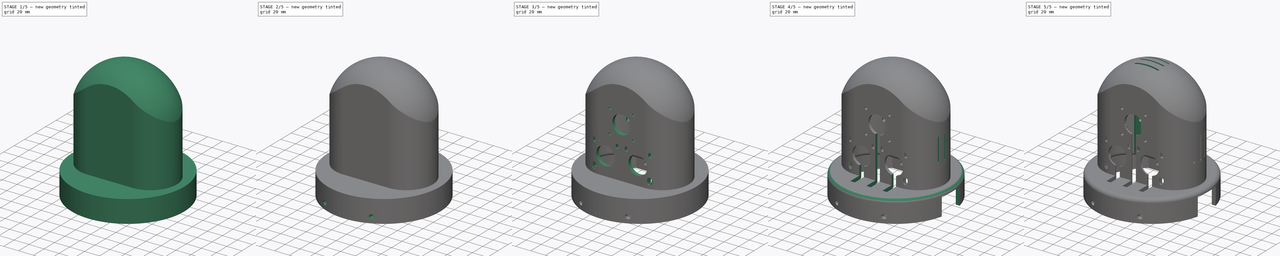
[diagram: build sequence overview — one tinted view per stage of 5, left to right]
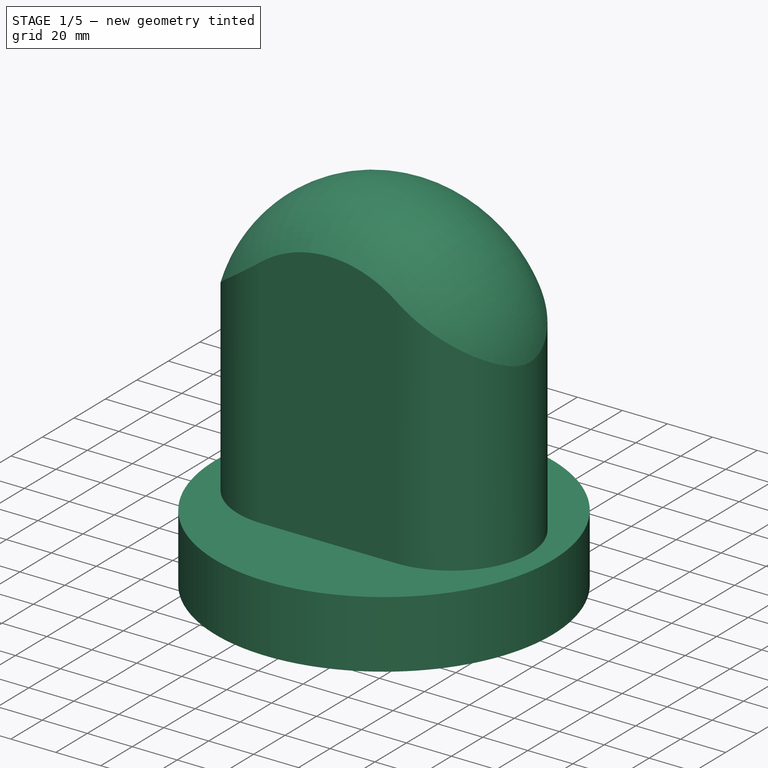
[diagram: stage 1 of 5 — iso view after this stage's code; geometry added in this stage tinted green]
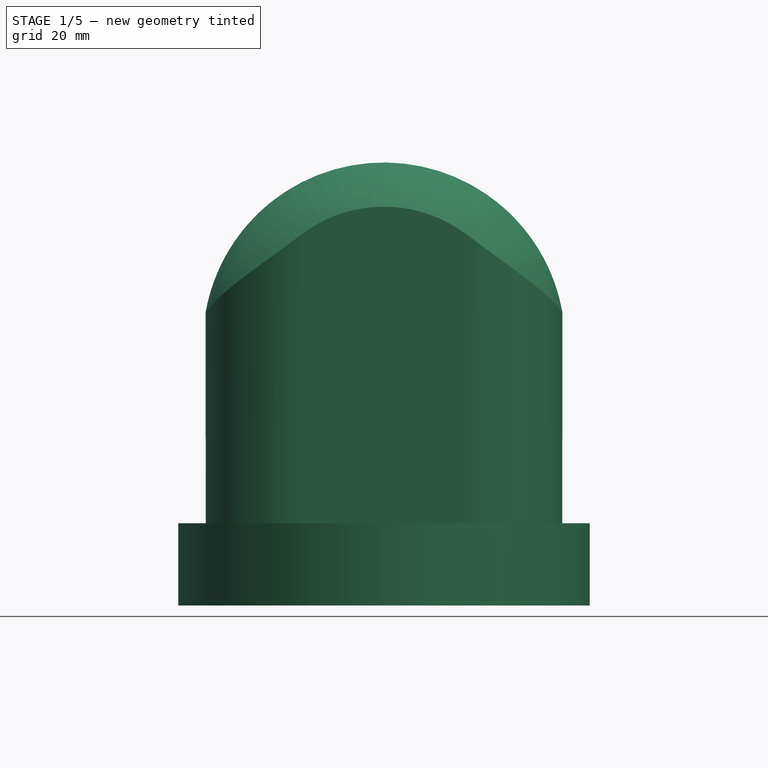
[diagram: stage 1 of 5 — front view after this stage's code; geometry added in this stage tinted green]
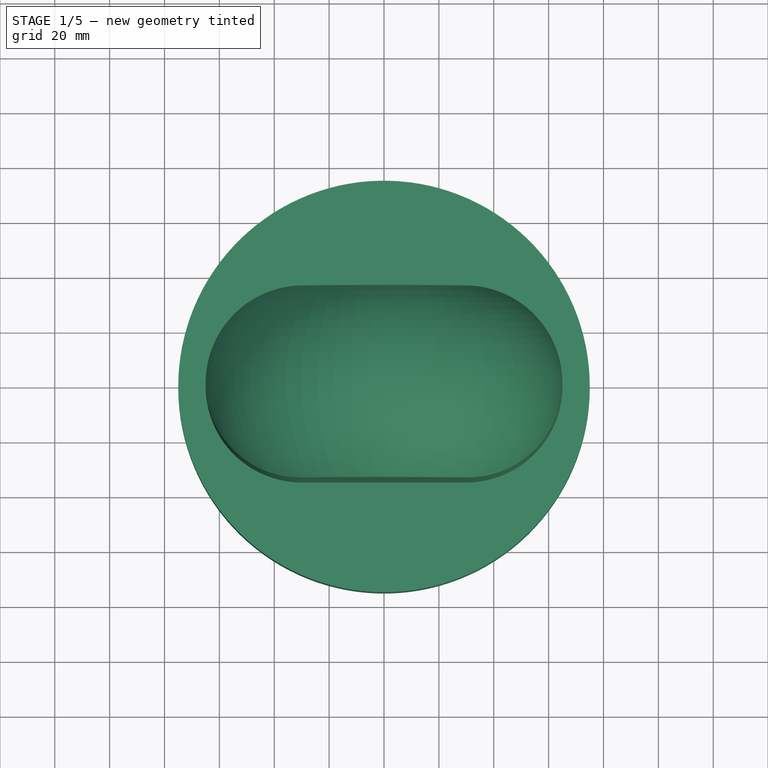
[diagram: stage 1 of 5 — top view after this stage's code; geometry added in this stage tinted green]
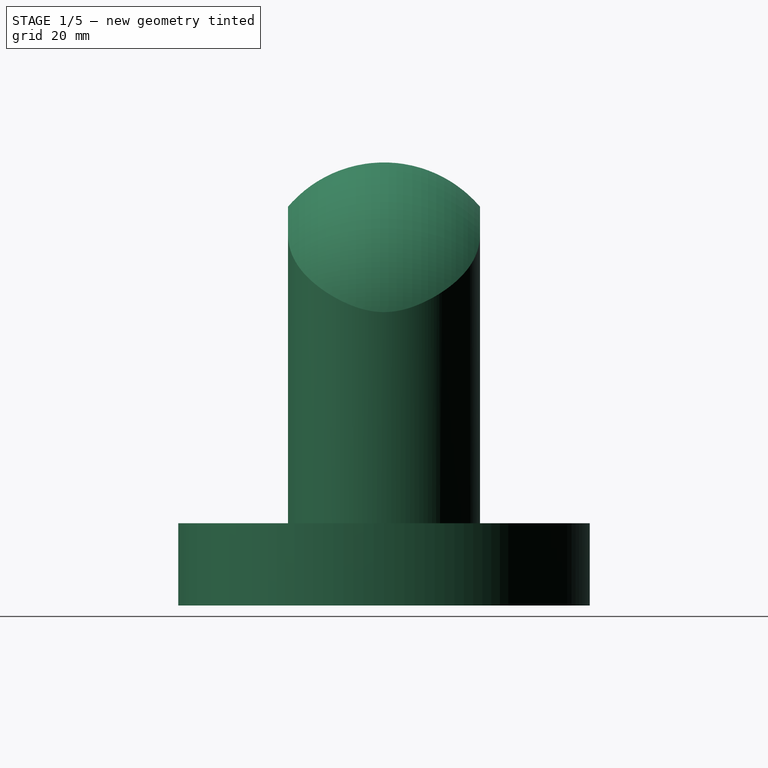
[diagram: stage 1 of 5 — right view after this stage's code; geometry added in this stage tinted green]
FCSTD DOCUMENT  (FreeCAD 0.19R24276 (Git))
Label: Art1Body
License: All rights reserved
LicenseURL: http://en.wikipedia.org/wiki/All_rights_reserved
objects: Sketcher::SketchObject×24, PartDesign::Pocket×19, PartDesign::Line×16, PartDesign::CoordinateSystem×8, PartDesign::Pad×3, PartDesign::Plane×3, PartDesign::Mirrored×2, PartDesign::Groove×1, PartDesign::Thickness×1, Spreadsheet::Sheet×1, PartDesign::MultiTransform×1, PartDesign::Revolution×1, PartDesign::Fillet×1, PartDesign::Body×1
note: 107 computed .brp shape members not serialized (recipe doc carries the construction recipe); baked Part::Feature solids carry a one-line shape summary decoded from their .brp

FEATURE [Sketcher::SketchObject] Sketch
  FullyConstrained = true
  MapMode = 5
  Support = -> [XY_Plane]
  sketch-geometry (1):
    g0: Circle CenterX=0 CenterY=0 CenterZ=0 NormalX=0 NormalY=0 NormalZ=1 AngleXU=0 Radius=75
  constraints (2):
    c: Coincident(g0,g-1)
    c: Radius(g0) = 75
FEATURE [PartDesign::Pad] Pad  label="Base"
  Direction = (1,1,1)
  Length = 30
  Length2 = 100
  Profile = -> Sketch
  Refine = true
  Type = 0
FEATURE [Sketcher::SketchObject] Sketch001
  FullyConstrained = true
  MapMode = 5
  Placement = pos=(0,0,30) rot=(0,0,1;0rad)
  Support = -> [Pad]
  sketch-geometry (4):
    g0: ArcOfCircle CenterX=-30 CenterY=0 CenterZ=0 NormalX=0 NormalY=0 NormalZ=1 AngleXU=0 Radius=35 StartAngle=1.5708 EndAngle=4.71239
    g1: ArcOfCircle CenterX=30 CenterY=0 CenterZ=0 NormalX=0 NormalY=0 NormalZ=1 AngleXU=0 Radius=35 StartAngle=4.71239 EndAngle=7.85398
    g2: LineSegment StartX=-30 StartY=-35 StartZ=0 EndX=30 EndY=-35 EndZ=0
    g3: LineSegment StartX=-30 StartY=35 StartZ=0 EndX=30 EndY=35 EndZ=0
  constraints (9):
    c: Tangent(g0,g3) = 1.5708
    c: Tangent(g0,g2) = -1.5708
    c: Tangent(g2,g1) = -1.5708
    c: Tangent(g3,g1) = 1.5708
    c: Horizontal(g2)
    c: PointOnObject(g0,g-1)
    c: Symmetric(g1,g0,g-2)
    c: Radius(g0) = 35
    c: DistanceX(g3,g3) = 60
FEATURE [PartDesign::Pad] Pad001  label="Body"
  BaseFeature = -> Pad
  Direction = (1,1,1)
  Length = 132
  Length2 = 100
  Profile = -> Sketch001
  Refine = true
  Type = 0
FEATURE [PartDesign::Plane] DatumPlane
  AttachmentOffset = pos=(0,0,-95.5) rot=(1,0,0;3.14159rad)
  Length = 179.741
  MapMode = 5
  Placement = pos=(0,0,95.5) rot=(0,0,1;0rad)
  ResizeMode = 0
  Support = -> [Pad001]
  Width = 179.766
FEATURE [Sketcher::SketchObject] Sketch002
  FullyConstrained = true
  MapMode = 5
  Placement = pos=(0,0,95.5) rot=(0,0,1;0rad)
  Support = -> [DatumPlane]
  sketch-geometry (6):
    g0: ArcOfCircle CenterX=-20 CenterY=2e-15 CenterZ=0 NormalX=0 NormalY=0 NormalZ=1 AngleXU=0 Radius=46 StartAngle=1.5708 EndAngle=4.71239
    g1: LineSegment StartX=-20 StartY=46 StartZ=0 EndX=-20 EndY=51 EndZ=0
    g2: LineSegment StartX=-20 StartY=51 StartZ=0 EndX=-120 EndY=51 EndZ=0
    g3: LineSegment StartX=-120 StartY=51 StartZ=0 EndX=-120 EndY=-51 EndZ=0
    g4: LineSegment StartX=-120 StartY=-51 StartZ=0 EndX=-20 EndY=-51 EndZ=0
    g5: LineSegment StartX=-20 StartY=-51 StartZ=0 EndX=-20 EndY=-46 EndZ=0
  constraints (18):
    c: Symmetric(g0,g0,g-1)
    c: Coincident(g1,g0)
    c: Coincident(g1,g2)
    c: Vertical(g1)
    c: Coincident(g2,g3)
    c: Vertical(g3)
    c: Coincident(g3,g4)
    c: Horizontal(g4)
    c: Coincident(g4,g5)
    c: Coincident(g5,g0)
    c: Vertical(g5)
    c: Horizontal(g2)
    c: Radius(g0) = 46
    c: Equal(g5,g1)
    c: DistanceY(g5,g5) = 5
    c: DistanceX(g4,g4) = 100
    c: PointOnObject(g0,g1)
    c: DistanceX(g0,g-1) = 20
FEATURE [PartDesign::Groove] Groove  label="TopRoundGeometry"
  Angle = 180
  Axis = (0,1,-1e-16)
  Base = (0,0,95.5)
  BaseFeature = -> Pad001
  Profile = -> Sketch002
  ReferenceAxis = -> Sketch002 [V_Axis]
  Refine = true
FEATURE [PartDesign::Thickness] Thickness
  Base = -> Groove [Face2]
  BaseFeature = -> Groove
  Intersection = false
  Join = 0
  Mode = 0
  Refine = true
  Reversed = true
  SupportTransform = false
  Value = 5
FEATURE [Sketcher::SketchObject] Sketch003
  ExternalGeometry = -> [Thickness]
  FullyConstrained = true
  MapMode = 5
  Placement = pos=(0,0,0) rot=(1,0,0;3.14159rad)
  Support = -> [Thickness]
  sketch-geometry (3):
    g0: LineSegment StartX=-43.3013 StartY=55 StartZ=0 EndX=-20 EndY=55 EndZ=0
    g1: LineSegment StartX=-20 StartY=55 StartZ=0 EndX=-20 EndY=67.082 EndZ=0
    g2: ArcOfCircle CenterX=0 CenterY=0 CenterZ=0 NormalX=0 NormalY=0 NormalZ=1 AngleXU=0 Radius=70 StartAngle=1.86055 EndAngle=2.23774
  constraints (9):
    c: Coincident(g1,g0)
    c: Vertical(g1)
    c: Horizontal(g0)
    c: Coincident(g2,g-1)
    c: Coincident(g2,g1)
    c: Coincident(g2,g0)
    c: Equal(g2,g-3)
    c: DistanceY(g2,g0) = 55
    c: DistanceX(g0,g2) = 20
FEATURE [PartDesign::Pad] Pad002  label="BottomFixing"
  BaseFeature = -> Thickness
  Direction = (1,1,1)
  Length = 10
  Length2 = 100
  Profile = -> Sketch003
  Refine = true
  Reversed = true
  Type = 2
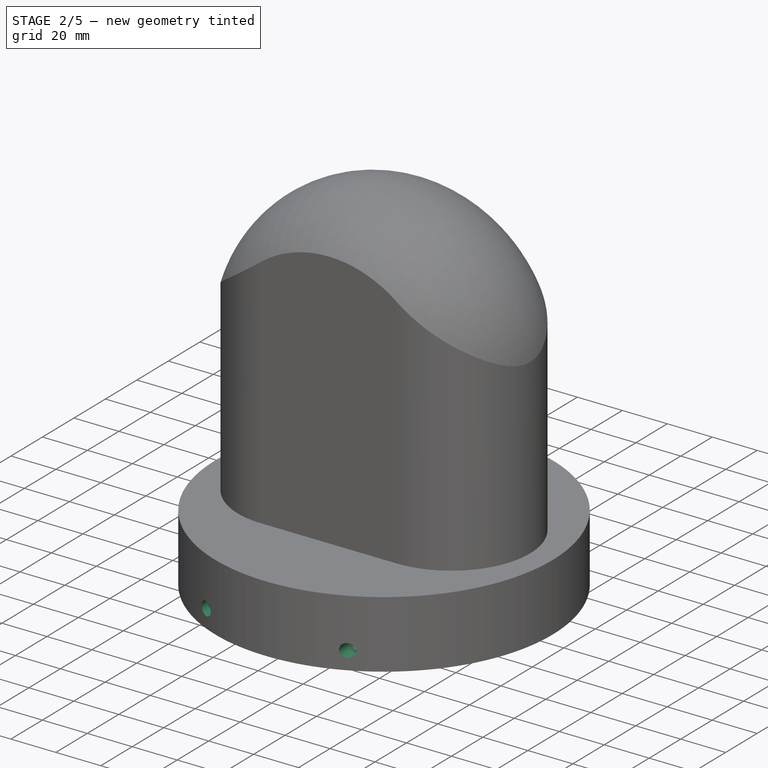
[diagram: stage 2 of 5 — iso view after this stage's code; geometry added in this stage tinted green]
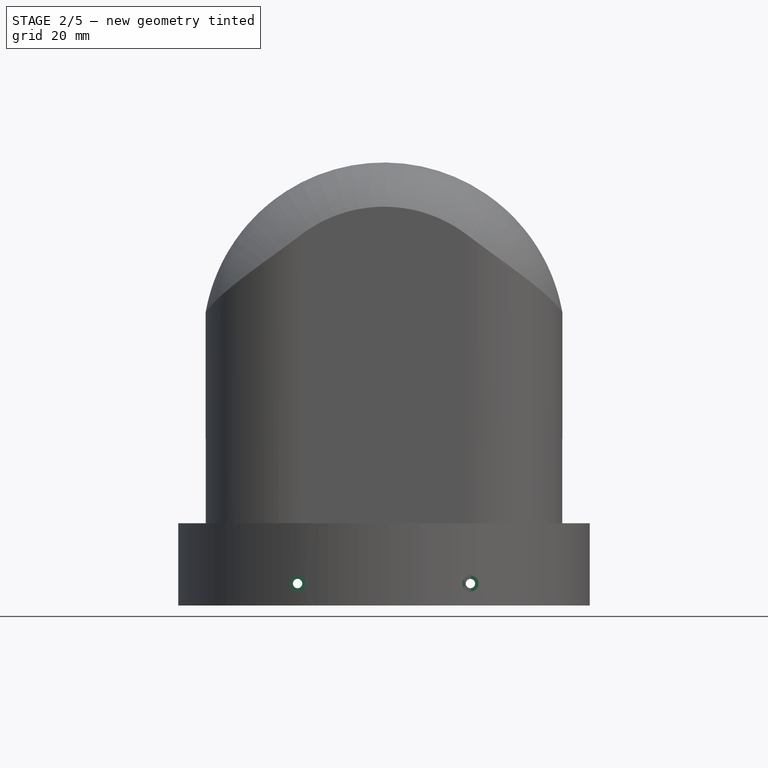
[diagram: stage 2 of 5 — front view after this stage's code; geometry added in this stage tinted green]
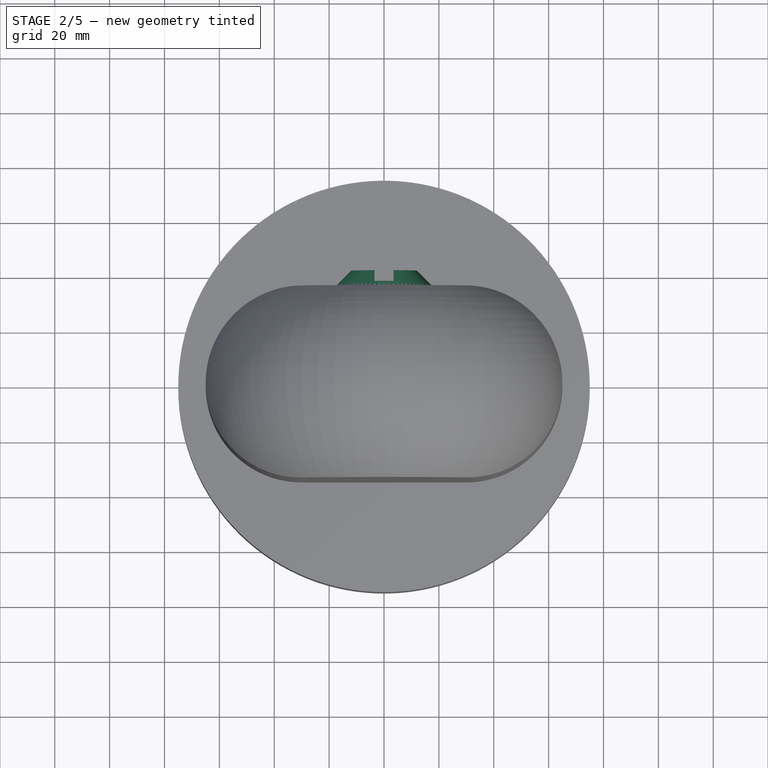
[diagram: stage 2 of 5 — top view after this stage's code; geometry added in this stage tinted green]
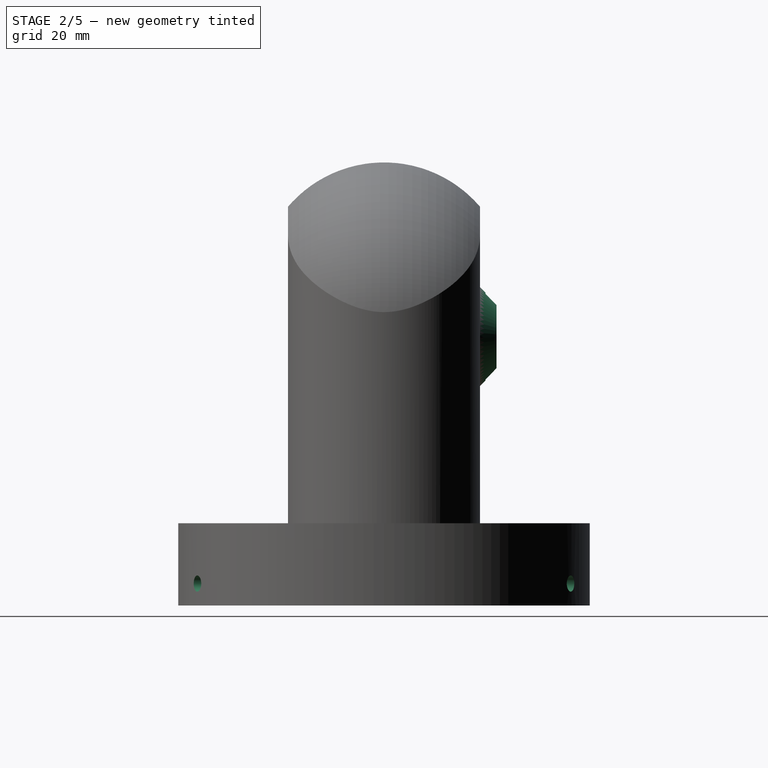
[diagram: stage 2 of 5 — right view after this stage's code; geometry added in this stage tinted green]
FEATURE [Sketcher::SketchObject] Sketch004
  ExternalGeometry = -> [Pad002]
  FullyConstrained = true
  MapMode = 5
  Placement = pos=(0,-55,0) rot=(0,0.707107,0.707107;3.14159rad)
  Support = -> [Pad002]
  expr: Constraints[0] = Spreadsheet.M3BoltBodyRadius
  sketch-geometry (1):
    g0: Circle CenterX=31.5 CenterY=8 CenterZ=0 NormalX=0 NormalY=0 NormalZ=1 AngleXU=0 Radius=1.7
  constraints (3):
    c: Radius(g0) = 1.7
    c: DistanceX(g-3,g0) = 11.5
    c: DistanceY(g-3,g0) = 8
FEATURE [PartDesign::Pocket] Pocket  label="BoltBodyHole"
  BaseFeature = -> Pad002
  Length = 5
  Length2 = 100
  Profile = -> Sketch004
  Refine = true
  Type = 2
FEATURE [Spreadsheet::Sheet] Spreadsheet
  cells = A2=M3BoltBodyRadius; B2(M3BoltBodyRadius)=1.7; A3=M3BoltHeadRadius; B3(M3BoltHeadRadius)=2.95; A4=M3NutCircumradius; B4(M3NutCircumradius)=3.35; A5=M3NutThickness; B5(M3NutThickness)=3; A6=Bearing655ZZBodyRadius; B6(Bearing655ZZBodyRadius)=8.199999999999999
FEATURE [PartDesign::Plane] DatumPlane001
  AttachmentOffset = pos=(0,0,-20) rot=(0,0,1;0rad)
  Length = 183.191
  MapMode = 5
  Placement = pos=(0,-75,4.4e-15) rot=(0,0.707107,0.707107;3.14159rad)
  ResizeMode = 0
  Support = -> [Pocket]
  Width = 219.705
FEATURE [Sketcher::SketchObject] Sketch005
  ExternalGeometry = -> [Pocket]
  FullyConstrained = true
  MapMode = 5
  Placement = pos=(0,-75,4.4e-15) rot=(0,0.707107,0.707107;3.14159rad)
  Support = -> [DatumPlane001]
  expr: Constraints[1] = Spreadsheet.M3BoltHeadRadius
  sketch-geometry (1):
    g0: Circle CenterX=31.5 CenterY=8 CenterZ=0 NormalX=0 NormalY=0 NormalZ=1 AngleXU=0 Radius=2.95
  constraints (2):
    c: Coincident(g0,g-3)
    c: Radius(g0) = 2.95
FEATURE [PartDesign::Pocket] Pocket001  label="BoltHeadHousing"
  BaseFeature = -> Pocket
  Length = 12
  Length2 = 100
  Profile = -> Sketch005
  Refine = true
  Reversed = true
  Type = 0
FEATURE [PartDesign::Mirrored] Mirrored
  MirrorPlane = -> Sketch003 [V_Axis]
  Refine = true
FEATURE [PartDesign::Mirrored] Mirrored001
  MirrorPlane = -> XZ_Plane
  Refine = true
FEATURE [PartDesign::MultiTransform] MultiTransform
  BaseFeature = -> Pocket001
  Originals = -> [Pad002,Pocket,Pocket001]
  Refine = true
  Transformations = -> [Mirrored,Mirrored001]
FEATURE [PartDesign::Plane] DatumPlane002
  AttachmentOffset = pos=(0,98,0) rot=(0,0,1;0rad)
  Length = 183.219
  MapMode = 2
  Placement = pos=(-2.18e-14,2.18e-14,98) rot=(0.57735,0.57735,0.57735;2.0944rad)
  ResizeMode = 0
  Support = -> [YZ_Plane]
  Width = 219.708
FEATURE [Sketcher::SketchObject] Sketch006
  ExternalGeometry = -> [MultiTransform]
  FullyConstrained = true
  MapMode = 5
  Placement = pos=(-2.18e-14,2.18e-14,98) rot=(0.57735,0.57735,0.57735;2.0944rad)
  Support = -> [DatumPlane002]
  expr: Constraints[7] = Spreadsheet.Bearing655ZZBodyRadius
  sketch-geometry (4):
    g0: LineSegment StartX=41 StartY=12 StartZ=0 EndX=41 EndY=8.2 EndZ=0
    g1: LineSegment StartX=41 StartY=8.2 StartZ=0 EndX=35 EndY=8.2 EndZ=0
    g2: LineSegment StartX=35 StartY=8.2 StartZ=0 EndX=35 EndY=18 EndZ=0
    g3: LineSegment StartX=35 StartY=18 StartZ=0 EndX=41 EndY=12 EndZ=0
  constraints (12):
    c: Vertical(g0)
    c: Coincident(g0,g1)
    c: Horizontal(g1)
    c: Coincident(g1,g2)
    c: Coincident(g2,g3)
    c: Coincident(g3,g0)
    c: Vertical(g2)
    c: DistanceY(g-1,g1) = 8.2
    c: PointOnObject(g2,g-3)
    c: DistanceX(g2,g0) = 6
    c: Angle(g3,g1) = 0.785398
    c: DistanceY(g-1,g0) = 12
FEATURE [PartDesign::Revolution] Revolution  label="BearingFixing"
  Angle = 360
  Axis = (1e-16,1,-1e-16)
  Base = (-2.18e-14,2.18e-14,98)
  BaseFeature = -> MultiTransform
  Profile = -> Sketch006
  ReferenceAxis = -> Sketch006 [H_Axis]
  Refine = true
FEATURE [Sketcher::SketchObject] Sketch007
  ExternalGeometry = -> [Revolution]
  FullyConstrained = true
  MapMode = 5
  Placement = pos=(4.5e-15,41,-4.5e-15) rot=(0,0.707107,0.707107;3.14159rad)
  Support = -> [Revolution]
  sketch-geometry (4):
    g0: LineSegment StartX=-3.45 StartY=118 StartZ=0 EndX=3.45 EndY=118 EndZ=0
    g1: LineSegment StartX=3.45 StartY=118 StartZ=0 EndX=3.45 EndY=78 EndZ=0
    g2: LineSegment StartX=3.45 StartY=78 StartZ=0 EndX=-3.45 EndY=78 EndZ=0
    g3: LineSegment StartX=-3.45 StartY=78 StartZ=0 EndX=-3.45 EndY=118 EndZ=0
  constraints (11):
    c: Coincident(g0,g1)
    c: Coincident(g1,g2)
    c: Coincident(g2,g3)
    c: Coincident(g3,g0)
    c: Horizontal(g2)
    c: Vertical(g1)
    c: Vertical(g3)
    c: Symmetric(g0,g0,g-2)
    c: DistanceX(g2,g2) = 6.9
    c: DistanceY(g1,g1) = 40
    c: DistanceY(g-3,g0) = 20
FEATURE [PartDesign::Pocket] Pocket002  label="BearingHolderHousing"
  BaseFeature = -> Revolution
  Length = 4
  Length2 = 100
  Profile = -> Sketch007
  Refine = true
  Type = 0
FEATURE [Sketcher::SketchObject] Sketch008
  ExternalGeometry = -> [Pocket002]
  FullyConstrained = true
  MapMode = 5
  Placement = pos=(0,37,-1.33e-14) rot=(0,0.707107,0.707107;3.14159rad)
  Support = -> [Pocket002]
  expr: Constraints[3] = Spreadsheet.M3BoltBodyRadius
  sketch-geometry (2):
    g0: Circle CenterX=0 CenterY=109 CenterZ=0 NormalX=0 NormalY=0 NormalZ=1 AngleXU=0 Radius=1.7
    g1: Circle CenterX=0 CenterY=87 CenterZ=0 NormalX=0 NormalY=0 NormalZ=1 AngleXU=0 Radius=1.7
  constraints (6):
    c: PointOnObject(g0,g-2)
    c: PointOnObject(g1,g-2)
    c: Equal(g1,g0)
    c: Radius(g0) = 1.7
    c: DistanceY(g1,g0) = 22
    c: DistanceY(g-3,g0) = 11
FEATURE [PartDesign::Pocket] Pocket003  label="BearingHolderBoltHoles"
  BaseFeature = -> Pocket002
  Length = 10
  Length2 = 100
  Profile = -> Sketch008
  Refine = true
  Type = 0
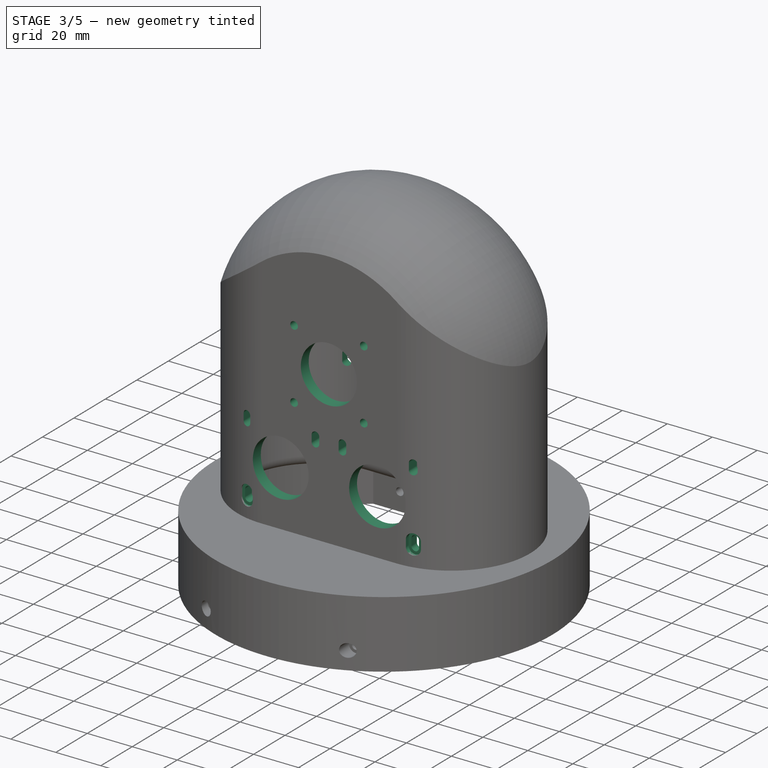
[diagram: stage 3 of 5 — iso view after this stage's code; geometry added in this stage tinted green]
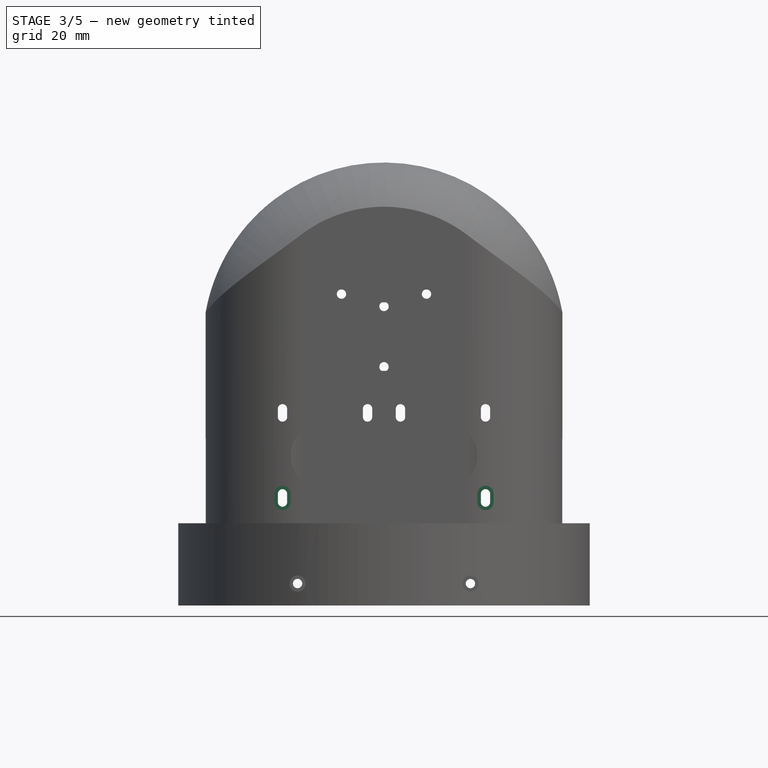
[diagram: stage 3 of 5 — front view after this stage's code; geometry added in this stage tinted green]
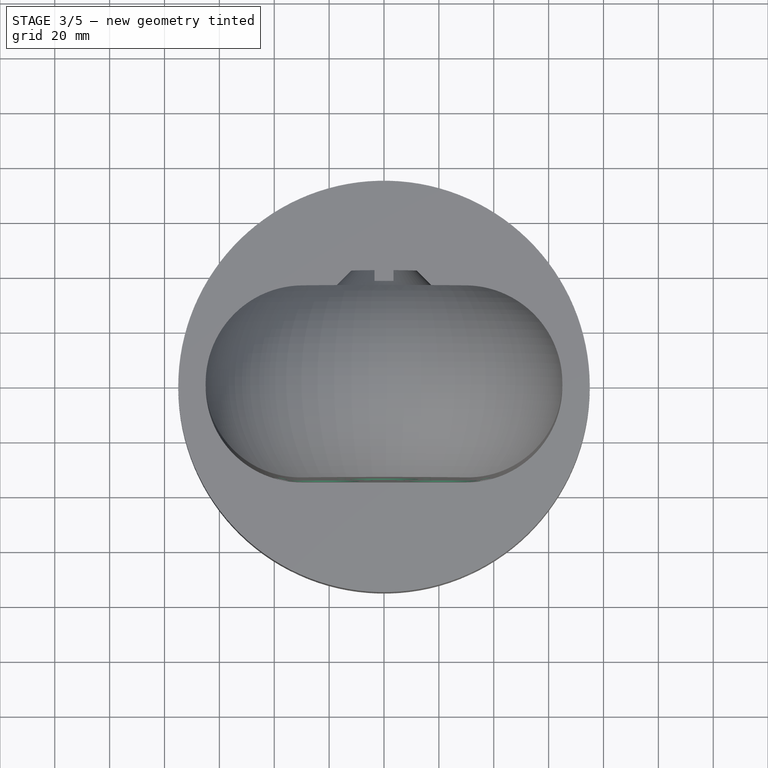
[diagram: stage 3 of 5 — top view after this stage's code; geometry added in this stage tinted green]
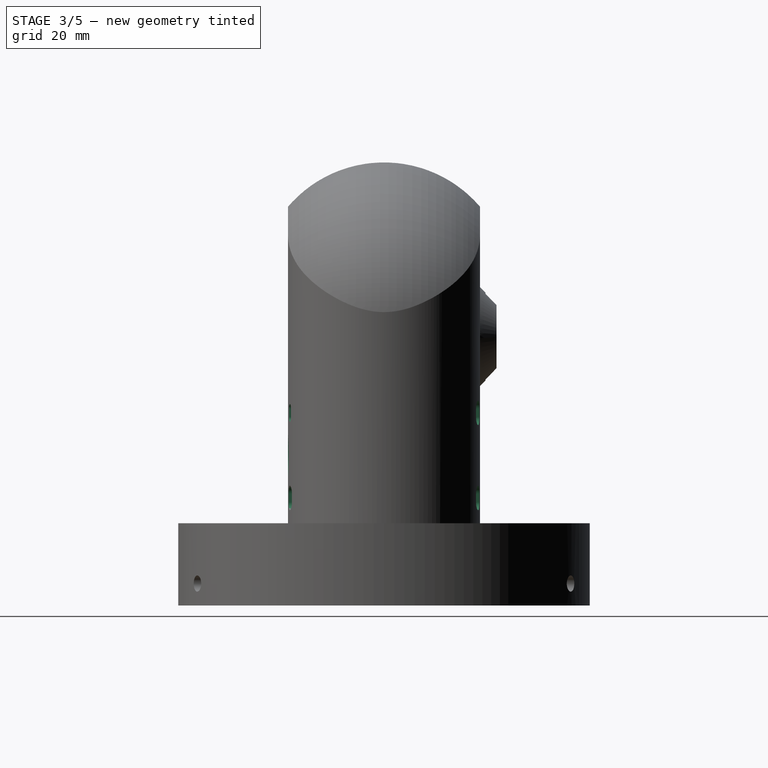
[diagram: stage 3 of 5 — right view after this stage's code; geometry added in this stage tinted green]
FEATURE [Sketcher::SketchObject] Sketch009
  ExternalGeometry = -> [Pocket003]
  FullyConstrained = true
  MapMode = 5
  Placement = pos=(-5.5125e-12,35,0) rot=(0,0.707107,0.707107;3.14159rad)
  Support = -> [Pocket003]
  expr: Constraints[14] = Spreadsheet.M3BoltBodyRadius
  sketch-geometry (7):
    g0: ArcOfCircle CenterX=-23.6643 CenterY=102 CenterZ=0 NormalX=0 NormalY=0 NormalZ=1 AngleXU=0 Radius=4 StartAngle=2.97414 EndAngle=6.11574
    g1: ArcOfCircle CenterX=23.6643 CenterY=102 CenterZ=0 NormalX=0 NormalY=0 NormalZ=1 AngleXU=0 Radius=4 StartAngle=3.30904 EndAngle=6.45063
    g2: ArcOfCircle CenterX=-6.4403e-12 CenterY=98 CenterZ=0 NormalX=0 NormalY=0 NormalZ=1 AngleXU=0 Radius=28 StartAngle=0.167448 EndAngle=2.97414
    g3: ArcOfCircle CenterX=-6.4403e-12 CenterY=98 CenterZ=0 NormalX=0 NormalY=0 NormalZ=1 AngleXU=0 Radius=20 StartAngle=0.167448 EndAngle=2.97414
    g4: LineSegment StartX=-6.4403e-12 StartY=98 StartZ=0 EndX=23.6643 EndY=98 EndZ=0
    g5: Circle CenterX=-25 CenterY=94.5 CenterZ=0 NormalX=0 NormalY=0 NormalZ=1 AngleXU=0 Radius=1.7
    g6: Circle CenterX=25 CenterY=94.5 CenterZ=0 NormalX=0 NormalY=0 NormalZ=1 AngleXU=0 Radius=1.7
  constraints (18):
    c: Coincident(g3,g2)
    c: Coincident(g-3,g2)
    c: Tangent(g3,g1) = 1.5708
    c: Tangent(g2,g1) = -1.5708
    c: Tangent(g3,g0) = 1.5708
    c: Tangent(g2,g0) = -1.5708
    c: Radius(g3) = 20
    c: Radius(g2) = 28
    c: Coincident(g4,g2)
    c: Horizontal(g4)
    c: Tangent(g1,g4)
    c: PointOnObject(g4,g1)
    c: Tangent(g0,g4)
    c: Equal(g6,g5)
    c: Radius(g5) = 1.7
    c: Symmetric(g5,g6,g-2)
    c: DistanceX(g5,g6) = 50
    c: DistanceY(g5,g0) = 7.5
FEATURE [PartDesign::Pocket] Pocket004  label="CableFeeding"
  BaseFeature = -> Pocket003
  Length = 5
  Length2 = 100
  Profile = -> Sketch009
  Refine = true
  Type = 2
FEATURE [Sketcher::SketchObject] Sketch010
  FullyConstrained = true
  MapMode = 5
  Placement = pos=(-5.5125e-12,35,0) rot=(0,0.707107,0.707107;3.14159rad)
  Support = -> [Pocket004]
  expr: Constraints[44] = Spreadsheet.M3BoltBodyRadius
  sketch-geometry (40):
    g0: LineSegment StartX=-37 StartY=71.7 StartZ=0 EndX=-6 EndY=71.7 EndZ=0
    g1: LineSegment StartX=-6 StartY=71.7 StartZ=0 EndX=-6 EndY=40.7 EndZ=0
    g2: LineSegment StartX=-6 StartY=40.7 StartZ=0 EndX=-37 EndY=40.7 EndZ=0
    g3: LineSegment StartX=-37 StartY=40.7 StartZ=0 EndX=-37 EndY=71.7 EndZ=0
    g4: ArcOfCircle CenterX=-37 CenterY=71.7 CenterZ=0 NormalX=0 NormalY=0 NormalZ=1 AngleXU=0 Radius=1.7 StartAngle=-4.4995e-12 EndAngle=3.14159
    g5: ArcOfCircle CenterX=-37 CenterY=68.7 CenterZ=0 NormalX=0 NormalY=0 NormalZ=1 AngleXU=0 Radius=1.7 StartAngle=3.14159 EndAngle=6.28319
    g6: LineSegment StartX=-38.7 StartY=71.7 StartZ=0 EndX=-38.7 EndY=68.7 EndZ=0
    g7: LineSegment StartX=-35.3 StartY=71.7 StartZ=0 EndX=-35.3 EndY=68.7 EndZ=0
    g8: ArcOfCircle CenterX=-6 CenterY=71.7 CenterZ=0 NormalX=0 NormalY=0 NormalZ=1 AngleXU=0 Radius=1.7 StartAngle=-2.89315e-11 EndAngle=3.14159
    g9: ArcOfCircle CenterX=-6 CenterY=68.7 CenterZ=0 NormalX=0 NormalY=0 NormalZ=1 AngleXU=0 Radius=1.7 StartAngle=3.14159 EndAngle=6.28319
    g10: LineSegment StartX=-7.7 StartY=71.7 StartZ=0 EndX=-7.7 EndY=68.7 EndZ=0
    g11: LineSegment StartX=-4.3 StartY=71.7 StartZ=0 EndX=-4.3 EndY=68.7 EndZ=0
    g12: ArcOfCircle CenterX=-37 CenterY=40.7 CenterZ=0 NormalX=0 NormalY=0 NormalZ=1 AngleXU=0 Radius=1.7 StartAngle=3.02e-14 EndAngle=3.14159
    g13: ArcOfCircle CenterX=-37 CenterY=37.7 CenterZ=0 NormalX=0 NormalY=0 NormalZ=1 AngleXU=0 Radius=1.7 StartAngle=3.14159 EndAngle=6.28319
    g14: LineSegment StartX=-38.7 StartY=40.7 StartZ=0 EndX=-38.7 EndY=37.7 EndZ=0
    g15: LineSegment StartX=-35.3 StartY=40.7 StartZ=0 EndX=-35.3 EndY=37.7 EndZ=0
    g16: ArcOfCircle CenterX=-6 CenterY=40.7 CenterZ=0 NormalX=0 NormalY=0 NormalZ=1 AngleXU=0 Radius=1.7 StartAngle=5.33e-14 EndAngle=3.14159
    g17: ArcOfCircle CenterX=-6 CenterY=37.7 CenterZ=0 NormalX=0 NormalY=0 NormalZ=1 AngleXU=0 Radius=1.7 StartAngle=3.14159 EndAngle=6.28319
    g18: LineSegment StartX=-7.7 StartY=40.7 StartZ=0 EndX=-7.7 EndY=37.7 EndZ=0
    g19: LineSegment StartX=-4.3 StartY=40.7 StartZ=0 EndX=-4.3 EndY=37.7 EndZ=0
    g20: LineSegment StartX=6 StartY=71.7 StartZ=0 EndX=37 EndY=71.7 EndZ=0
    g21: LineSegment StartX=37 StartY=71.7 StartZ=0 EndX=37 EndY=40.7 EndZ=0
    g22: LineSegment StartX=37 StartY=40.7 StartZ=0 EndX=6 EndY=40.7 EndZ=0
    g23: LineSegment StartX=6 StartY=40.7 StartZ=0 EndX=6 EndY=71.7 EndZ=0
    g24: ArcOfCircle CenterX=6 CenterY=71.7 CenterZ=0 NormalX=0 NormalY=0 NormalZ=1 AngleXU=0 Radius=1.7 StartAngle=0 EndAngle=3.14159
    g25: ArcOfCircle CenterX=6 CenterY=68.7 CenterZ=0 NormalX=0 NormalY=0 NormalZ=1 AngleXU=0 Radius=1.7 StartAngle=3.14159 EndAngle=6.28319
    g26: LineSegment StartX=4.3 StartY=71.7 StartZ=0 EndX=4.3 EndY=68.7 EndZ=0
    g27: LineSegment StartX=7.7 StartY=71.7 StartZ=0 EndX=7.7 EndY=68.7 EndZ=0
    g28: ArcOfCircle CenterX=37 CenterY=71.7 CenterZ=0 NormalX=0 NormalY=0 NormalZ=1 AngleXU=0 Radius=1.7 StartAngle=2.4e-15 EndAngle=3.14159
    g29: ArcOfCircle CenterX=37 CenterY=68.7 CenterZ=0 NormalX=0 NormalY=0 NormalZ=1 AngleXU=0 Radius=1.7 StartAngle=3.14159 EndAngle=6.28319
    g30: LineSegment StartX=35.3 StartY=71.7 StartZ=0 EndX=35.3 EndY=68.7 EndZ=0
    g31: LineSegment StartX=38.7 StartY=71.7 StartZ=0 EndX=38.7 EndY=68.7 EndZ=0
    g32: ArcOfCircle CenterX=6 CenterY=40.7 CenterZ=0 NormalX=0 NormalY=0 NormalZ=1 AngleXU=0 Radius=1.7 StartAngle=8e-16 EndAngle=3.14159
    g33: ArcOfCircle CenterX=6 CenterY=37.7 CenterZ=0 NormalX=0 NormalY=0 NormalZ=1 AngleXU=0 Radius=1.7 StartAngle=3.14159 EndAngle=6.28319
    g34: LineSegment StartX=4.3 StartY=40.7 StartZ=0 EndX=4.3 EndY=37.7 EndZ=0
    g35: LineSegment StartX=7.7 StartY=40.7 StartZ=0 EndX=7.7 EndY=37.7 EndZ=0
    g36: ArcOfCircle CenterX=37 CenterY=40.7 CenterZ=0 NormalX=0 NormalY=0 NormalZ=1 AngleXU=0 Radius=1.7 StartAngle=0 EndAngle=3.14159
    g37: ArcOfCircle CenterX=37 CenterY=37.7 CenterZ=0 NormalX=0 NormalY=0 NormalZ=1 AngleXU=0 Radius=1.7 StartAngle=3.14159 EndAngle=6.28319
    g38: LineSegment StartX=35.3 StartY=40.7 StartZ=0 EndX=35.3 EndY=37.7 EndZ=0
    g39: LineSegment StartX=38.7 StartY=40.7 StartZ=0 EndX=38.7 EndY=37.7 EndZ=0
  constraints (95):
    c: Coincident(g0,g1)
    c: Coincident(g1,g2)
    c: Coincident(g2,g3)
    c: Coincident(g3,g0)
    c: Horizontal(g0)
    c: Horizontal(g2)
    c: Vertical(g1)
    c: Vertical(g3)
    c: Equal(g1,g2)
    c: DistanceX(g2,g2) = 31
    c: Tangent(g4,g7) = 1.5708
    c: Tangent(g4,g6) = -1.5708
    c: Tangent(g6,g5) = -1.5708
    c: Tangent(g7,g5) = 1.5708
    c: Vertical(g6)
    c: Equal(g4,g5)
    c: Coincident(g4,g0)
    c: Tangent(g8,g11) = 1.5708
    c: Tangent(g8,g10) = -1.5708
    c: Tangent(g10,g9) = -1.5708
    c: Tangent(g11,g9) = 1.5708
    c: Vertical(g10)
    c: Equal(g8,g9)
    c: Coincident(g8,g0)
    c: Tangent(g12,g15) = 1.5708
    c: Tangent(g12,g14) = -1.5708
    c: Tangent(g14,g13) = -1.5708
    c: Tangent(g15,g13) = 1.5708
    c: Vertical(g14)
    c: Equal(g12,g13)
    c: Coincident(g12,g2)
    c: Tangent(g16,g19) = 1.5708
    c: Tangent(g16,g18) = -1.5708
    c: Tangent(g18,g17) = -1.5708
    c: Tangent(g19,g17) = 1.5708
    c: Vertical(g18)
    c: Equal(g16,g17)
    c: Coincident(g16,g1)
    c: Equal(g19,g11)
    c: Equal(g11,g7)
    c: Equal(g7,g15)
    c: Equal(g8,g4)
    c: Equal(g4,g12)
    c: Equal(g12,g16)
    c: Radius(g16) = 1.7
    c: DistanceY(g7,g7) = 3
    c: Coincident(g20,g21)
    c: Coincident(g21,g22)
    c: Coincident(g22,g23)
    c: Coincident(g23,g20)
    c: Horizontal(g20)
    c: Horizontal(g22)
    c: Vertical(g21)
    c: Vertical(g23)
    c: Equal(g21,g22)
    c: Equal(g2,g22) = 31
    c: Tangent(g24,g27) = 1.5708
    c: Tangent(g24,g26) = -1.5708
    c: Tangent(g26,g25) = -1.5708
    c: Tangent(g27,g25) = 1.5708
    c: Vertical(g26)
    c: Equal(g24,g25)
    c: Coincident(g24,g20)
    c: Tangent(g28,g31) = 1.5708
    c: Tangent(g28,g30) = -1.5708
    c: Tangent(g30,g29) = -1.5708
    c: Tangent(g31,g29) = 1.5708
    c: Vertical(g30)
    c: Equal(g28,g29)
    c: Coincident(g28,g20)
    c: Tangent(g32,g35) = 1.5708
    c: Tangent(g32,g34) = -1.5708
    c: Tangent(g34,g33) = -1.5708
    c: Tangent(g35,g33) = 1.5708
    c: Vertical(g34)
    c: Equal(g32,g33)
    c: Coincident(g32,g22)
    c: Tangent(g36,g39) = 1.5708
    c: Tangent(g36,g38) = -1.5708
    c: Tangent(g38,g37) = -1.5708
    c: Tangent(g39,g37) = 1.5708
    c: Vertical(g38)
    c: Equal(g36,g37)
    c: Coincident(g36,g21)
    c: Equal(g39,g31)
    c: Equal(g31,g27)
    c: Equal(g27,g35)
    c: Equal(g28,g24)
    c: Equal(g24,g32)
    c: Equal(g32,g36)
    c: Equal(g16,g36) = 1.7
    c: Equal(g7,g27) = 3
    c: Symmetric(g8,g24,g-2)
    c: DistanceX(g8,g24) = 12
    c: DistanceY(g-1,g8) = 71.7
FEATURE [PartDesign::Pocket] Pocket005  label="StepperBackBoltBodyHoles"
  BaseFeature = -> Pocket004
  Length = 10
  Length2 = 100
  Profile = -> Sketch010
  Refine = true
  Type = 0
FEATURE [Sketcher::SketchObject] Sketch011
  ExternalGeometry = -> [Pocket005]
  FullyConstrained = true
  MapMode = 5
  Placement = pos=(-5.5125e-12,35,0) rot=(0,0.707107,0.707107;3.14159rad)
  Support = -> [Pocket005]
  expr: Constraints[18] = Spreadsheet.M3BoltHeadRadius
  sketch-geometry (40):
    g0: LineSegment StartX=-6 StartY=71.7 StartZ=0 EndX=-37 EndY=71.7 EndZ=0
    g1: LineSegment StartX=-37 StartY=71.7 StartZ=0 EndX=-37 EndY=40.7 EndZ=0
    g2: LineSegment StartX=-37 StartY=40.7 StartZ=0 EndX=-6 EndY=40.7 EndZ=0
    g3: LineSegment StartX=-6 StartY=40.7 StartZ=0 EndX=-6 EndY=71.7 EndZ=0
    g4: ArcOfCircle CenterX=-6 CenterY=71.7 CenterZ=0 NormalX=0 NormalY=0 NormalZ=1 AngleXU=0 Radius=2.95 StartAngle=1.9e-15 EndAngle=3.14159
    g5: ArcOfCircle CenterX=-6 CenterY=68.7 CenterZ=0 NormalX=0 NormalY=0 NormalZ=1 AngleXU=0 Radius=2.95 StartAngle=3.14159 EndAngle=6.28319
    g6: LineSegment StartX=-8.95 StartY=71.7 StartZ=0 EndX=-8.95 EndY=68.7 EndZ=0
    g7: LineSegment StartX=-3.05 StartY=71.7 StartZ=0 EndX=-3.05 EndY=68.7 EndZ=0
    g8: ArcOfCircle CenterX=-6 CenterY=40.7 CenterZ=0 NormalX=0 NormalY=0 NormalZ=1 AngleXU=0 Radius=2.95 StartAngle=1.1e-15 EndAngle=3.14159
    g9: ArcOfCircle CenterX=-6 CenterY=37.7 CenterZ=0 NormalX=0 NormalY=0 NormalZ=1 AngleXU=0 Radius=2.95 StartAngle=3.14159 EndAngle=6.28319
    g10: LineSegment StartX=-8.95 StartY=40.7 StartZ=0 EndX=-8.95 EndY=37.7 EndZ=0
    g11: LineSegment StartX=-3.05 StartY=40.7 StartZ=0 EndX=-3.05 EndY=37.7 EndZ=0
    g12: ArcOfCircle CenterX=-37 CenterY=40.7 CenterZ=0 NormalX=0 NormalY=0 NormalZ=1 AngleXU=0 Radius=2.95 StartAngle=4e-16 EndAngle=3.14159
    g13: ArcOfCircle CenterX=-37 CenterY=37.7 CenterZ=0 NormalX=0 NormalY=0 NormalZ=1 AngleXU=0 Radius=2.95 StartAngle=3.14159 EndAngle=6.28319
    g14: LineSegment StartX=-39.95 StartY=40.7 StartZ=0 EndX=-39.95 EndY=37.7 EndZ=0
    g15: LineSegment StartX=-34.05 StartY=40.7 StartZ=0 EndX=-34.05 EndY=37.7 EndZ=0
    g16: ArcOfCircle CenterX=-37 CenterY=71.7 CenterZ=0 NormalX=0 NormalY=0 NormalZ=1 AngleXU=0 Radius=2.95 StartAngle=2.4e-15 EndAngle=3.14159
    g17: ArcOfCircle CenterX=-37 CenterY=68.7 CenterZ=0 NormalX=0 NormalY=0 NormalZ=1 AngleXU=0 Radius=2.95 StartAngle=3.14159 EndAngle=6.28319
    g18: LineSegment StartX=-39.95 StartY=71.7 StartZ=0 EndX=-39.95 EndY=68.7 EndZ=0
    g19: LineSegment StartX=-34.05 StartY=71.7 StartZ=0 EndX=-34.05 EndY=68.7 EndZ=0
    g20: LineSegment StartX=37 StartY=71.7 StartZ=0 EndX=6 EndY=71.7 EndZ=0
    g21: LineSegment StartX=6 StartY=71.7 StartZ=0 EndX=6 EndY=40.7 EndZ=0
    g22: LineSegment StartX=6 StartY=40.7 StartZ=0 EndX=37 EndY=40.7 EndZ=0
    g23: LineSegment StartX=37 StartY=40.7 StartZ=0 EndX=37 EndY=71.7 EndZ=0
    g24: ArcOfCircle CenterX=37 CenterY=71.7 CenterZ=0 NormalX=0 NormalY=0 NormalZ=1 AngleXU=0 Radius=2.95 StartAngle=-9e-16 EndAngle=3.14159
    g25: ArcOfCircle CenterX=37 CenterY=68.7 CenterZ=0 NormalX=0 NormalY=0 NormalZ=1 AngleXU=0 Radius=2.95 StartAngle=3.14159 EndAngle=6.28319
    g26: LineSegment StartX=34.05 StartY=71.7 StartZ=0 EndX=34.05 EndY=68.7 EndZ=0
    g27: LineSegment StartX=39.95 StartY=71.7 StartZ=0 EndX=39.95 EndY=68.7 EndZ=0
    g28: ArcOfCircle CenterX=37 CenterY=40.7 CenterZ=0 NormalX=0 NormalY=0 NormalZ=1 AngleXU=0 Radius=2.95 StartAngle=5e-16 EndAngle=3.14159
    g29: ArcOfCircle CenterX=37 CenterY=37.7 CenterZ=0 NormalX=0 NormalY=0 NormalZ=1 AngleXU=0 Radius=2.95 StartAngle=3.14159 EndAngle=6.28319
    g30: LineSegment StartX=34.05 StartY=40.7 StartZ=0 EndX=34.05 EndY=37.7 EndZ=0
    g31: LineSegment StartX=39.95 StartY=40.7 StartZ=0 EndX=39.95 EndY=37.7 EndZ=0
    g32: ArcOfCircle CenterX=6 CenterY=40.7 CenterZ=0 NormalX=0 NormalY=0 NormalZ=1 AngleXU=0 Radius=2.95 StartAngle=1e-16 EndAngle=3.14159
    g33: ArcOfCircle CenterX=6 CenterY=37.7 CenterZ=0 NormalX=0 NormalY=0 NormalZ=1 AngleXU=0 Radius=2.95 StartAngle=3.14159 EndAngle=6.28319
    g34: LineSegment StartX=3.05 StartY=40.7 StartZ=0 EndX=3.05 EndY=37.7 EndZ=0
    g35: LineSegment StartX=8.95 StartY=40.7 StartZ=0 EndX=8.95 EndY=37.7 EndZ=0
    g36: ArcOfCircle CenterX=6 CenterY=71.7 CenterZ=0 NormalX=0 NormalY=0 NormalZ=1 AngleXU=0 Radius=2.95 StartAngle=1.3e-15 EndAngle=3.14159
    g37: ArcOfCircle CenterX=6 CenterY=68.7 CenterZ=0 NormalX=0 NormalY=0 NormalZ=1 AngleXU=0 Radius=2.95 StartAngle=3.14159 EndAngle=6.28319
    g38: LineSegment StartX=3.05 StartY=71.7 StartZ=0 EndX=3.05 EndY=68.7 EndZ=0
    g39: LineSegment StartX=8.95 StartY=71.7 StartZ=0 EndX=8.95 EndY=68.7 EndZ=0
  constraints (94):
    c: Coincident(g0,g1)
    c: Coincident(g1,g2)
    c: Coincident(g2,g3)
    c: Coincident(g3,g0)
    c: Horizontal(g0)
    c: Horizontal(g2)
    c: Vertical(g1)
    c: Vertical(g3)
    c: Coincident(g0,g-3)
    c: Equal(g2,g3)
    c: DistanceY(g3,g3) = 31
    c: Tangent(g4,g7) = 1.5708
    c: Tangent(g4,g6) = -1.5708
    c: Tangent(g6,g5) = -1.5708
    c: Tangent(g7,g5) = 1.5708
    c: Vertical(g6)
    c: Equal(g4,g5)
    c: Coincident(g4,g0)
    c: Radius(g4) = 2.95
    c: DistanceY(g7,g7) = 3
    c: Tangent(g8,g11) = 1.5708
    c: Tangent(g8,g10) = -1.5708
    c: Tangent(g10,g9) = -1.5708
    c: Tangent(g11,g9) = 1.5708
    c: Vertical(g10)
    c: Equal(g8,g9)
    c: Coincident(g8,g2)
    c: Tangent(g12,g15) = 1.5708
    c: Tangent(g12,g14) = -1.5708
    c: Tangent(g14,g13) = -1.5708
    c: Tangent(g15,g13) = 1.5708
    c: Vertical(g14)
    c: Equal(g12,g13)
    c: Coincident(g12,g1)
    c: Tangent(g16,g19) = 1.5708
    c: Tangent(g16,g18) = -1.5708
    c: Tangent(g18,g17) = -1.5708
    c: Tangent(g19,g17) = 1.5708
    c: Vertical(g18)
    c: Equal(g16,g17)
    c: Coincident(g16,g0)
    c: Equal(g7,g11)
    c: Equal(g11,g15)
    c: Equal(g15,g19)
    c: Equal(g16,g12)
    c: Equal(g12,g8)
    c: Equal(g8,g4)
    c: Coincident(g20,g21)
    c: Coincident(g21,g22)
    c: Coincident(g22,g23)
    c: Coincident(g23,g20)
    c: Horizontal(g20)
    c: Horizontal(g22)
    c: Vertical(g21)
    c: Vertical(g23)
    c: Equal(g22,g23)
    c: Equal(g3,g23) = 31
    c: Tangent(g24,g27) = 1.5708
    c: Tangent(g24,g26) = -1.5708
    c: Tangent(g26,g25) = -1.5708
    c: Tangent(g27,g25) = 1.5708
    c: Vertical(g26)
    c: Equal(g24,g25)
    c: Coincident(g24,g20)
    c: Equal(g4,g24) = 2.95
    c: Equal(g7,g27) = 3
    c: Tangent(g28,g31) = 1.5708
    c: Tangent(g28,g30) = -1.5708
    c: Tangent(g30,g29) = -1.5708
    c: Tangent(g31,g29) = 1.5708
    c: Vertical(g30)
    c: Equal(g28,g29)
    c: Coincident(g28,g22)
    c: Tangent(g32,g35) = 1.5708
    c: Tangent(g32,g34) = -1.5708
    c: Tangent(g34,g33) = -1.5708
    c: Tangent(g35,g33) = 1.5708
    c: Vertical(g34)
    c: Equal(g32,g33)
    c: Coincident(g32,g21)
    c: Tangent(g36,g39) = 1.5708
    c: Tangent(g36,g38) = -1.5708
    c: Tangent(g38,g37) = -1.5708
    c: Tangent(g39,g37) = 1.5708
    c: Vertical(g38)
    c: Equal(g36,g37)
    c: Coincident(g36,g20)
    c: Equal(g27,g31)
    c: Equal(g31,g35)
    c: Equal(g35,g39)
    c: Equal(g36,g32)
    c: Equal(g32,g28)
    c: Equal(g28,g24)
    c: Coincident(g36,g-4)
FEATURE [PartDesign::Pocket] Pocket006  label="StepperBackBoltHeadHousings"
  BaseFeature = -> Pocket005
  Length = 3
  Length2 = 100
  Profile = -> Sketch011
  Refine = true
  Type = 0
FEATURE [Sketcher::SketchObject] Sketch012
  FullyConstrained = true
  MapMode = 5
  Placement = pos=(0,-35,0) rot=(1,0,0;1.5708rad)
  Support = -> [Pocket006]
  expr: Constraints[114] = Spreadsheet.M3BoltBodyRadius
  expr: Constraints[35] = Spreadsheet.M3BoltBodyRadius
  sketch-geometry (57):
    g0: LineSegment StartX=-37 StartY=70.2 StartZ=0 EndX=-6 EndY=70.2 EndZ=0
    g1: LineSegment StartX=-6 StartY=70.2 StartZ=0 EndX=-6 EndY=39.2 EndZ=0
    g2: LineSegment StartX=-6 StartY=39.2 StartZ=0 EndX=-37 EndY=39.2 EndZ=0
    g3: LineSegment StartX=-37 StartY=39.2 StartZ=0 EndX=-37 EndY=70.2 EndZ=0
    g4: ArcOfCircle CenterX=-6 CenterY=71.7 CenterZ=0 NormalX=0 NormalY=0 NormalZ=1 AngleXU=0 Radius=1.7 StartAngle=3.8e-15 EndAngle=3.14159
    g5: ArcOfCircle CenterX=-6 CenterY=68.7 CenterZ=0 NormalX=0 NormalY=0 NormalZ=1 AngleXU=0 Radius=1.7 StartAngle=3.14159 EndAngle=6.28319
    g6: LineSegment StartX=-7.7 StartY=71.7 StartZ=0 EndX=-7.7 EndY=68.7 EndZ=0
    g7: LineSegment StartX=-4.3 StartY=71.7 StartZ=0 EndX=-4.3 EndY=68.7 EndZ=0
    g8: ArcOfCircle CenterX=-6 CenterY=39.2 CenterZ=0 NormalX=0 NormalY=0 NormalZ=1 AngleXU=0 Radius=1.7 StartAngle=4e-16 EndAngle=3.14159
    g9: ArcOfCircle CenterX=-6 CenterY=36.2 CenterZ=0 NormalX=0 NormalY=0 NormalZ=1 AngleXU=0 Radius=1.7 StartAngle=3.14159 EndAngle=6.28319
    g10: LineSegment StartX=-7.7 StartY=39.2 StartZ=0 EndX=-7.7 EndY=36.2 EndZ=0
    g11: LineSegment StartX=-4.3 StartY=39.2 StartZ=0 EndX=-4.3 EndY=36.2 EndZ=0
    g12: ArcOfCircle CenterX=-37 CenterY=40.7 CenterZ=0 NormalX=0 NormalY=0 NormalZ=1 AngleXU=0 Radius=1.7 StartAngle=1.7e-15 EndAngle=3.14159
    g13: ArcOfCircle CenterX=-37 CenterY=37.7 CenterZ=0 NormalX=0 NormalY=0 NormalZ=1 AngleXU=0 Radius=1.7 StartAngle=3.14159 EndAngle=6.28319
    g14: LineSegment StartX=-38.7 StartY=40.7 StartZ=0 EndX=-38.7 EndY=37.7 EndZ=0
    g15: LineSegment StartX=-35.3 StartY=40.7 StartZ=0 EndX=-35.3 EndY=37.7 EndZ=0
    g16: ArcOfCircle CenterX=-37 CenterY=71.7 CenterZ=0 NormalX=0 NormalY=0 NormalZ=1 AngleXU=0 Radius=1.7 StartAngle=-1.8e-15 EndAngle=3.14159
    g17: ArcOfCircle CenterX=-37 CenterY=68.7 CenterZ=0 NormalX=0 NormalY=0 NormalZ=1 AngleXU=0 Radius=1.7 StartAngle=3.14159 EndAngle=6.28319
    g18: LineSegment StartX=-38.7 StartY=71.7 StartZ=0 EndX=-38.7 EndY=68.7 EndZ=0
    g19: LineSegment StartX=-35.3 StartY=71.7 StartZ=0 EndX=-35.3 EndY=68.7 EndZ=0
    g20: Circle CenterX=-21.5 CenterY=54.7 CenterZ=0 NormalX=0 NormalY=0 NormalZ=1 AngleXU=0 Radius=12.5
    g21: LineSegment StartX=-37 StartY=39.2 StartZ=0 EndX=-6 EndY=70.2 EndZ=0
    g22: LineSegment StartX=-37 StartY=70.2 StartZ=0 EndX=-6 EndY=39.2 EndZ=0
    g23: LineSegment StartX=6 StartY=70.2 StartZ=0 EndX=37 EndY=70.2 EndZ=0
    g24: LineSegment StartX=37 StartY=70.2 StartZ=0 EndX=37 EndY=39.2 EndZ=0
    g25: LineSegment StartX=37 StartY=39.2 StartZ=0 EndX=6 EndY=39.2 EndZ=0
    g26: LineSegment StartX=6 StartY=39.2 StartZ=0 EndX=6 EndY=70.2 EndZ=0
    g27: ArcOfCircle CenterX=37 CenterY=71.7 CenterZ=0 NormalX=0 NormalY=0 NormalZ=1 AngleXU=0 Radius=1.7 StartAngle=3.5365e-12 EndAngle=3.14159
    g28: ArcOfCircle CenterX=37 CenterY=68.7 CenterZ=0 NormalX=0 NormalY=0 NormalZ=1 AngleXU=0 Radius=1.7 StartAngle=3.14159 EndAngle=6.28319
    g29: LineSegment StartX=35.3 StartY=71.7 StartZ=0 EndX=35.3 EndY=68.7 EndZ=0
    g30: LineSegment StartX=38.7 StartY=71.7 StartZ=0 EndX=38.7 EndY=68.7 EndZ=0
    g31: ArcOfCircle CenterX=37 CenterY=40.7 CenterZ=0 NormalX=0 NormalY=0 NormalZ=1 AngleXU=0 Radius=1.7 StartAngle=-9e-16 EndAngle=3.14159
    g32: ArcOfCircle CenterX=37 CenterY=37.7 CenterZ=0 NormalX=0 NormalY=0 NormalZ=1 AngleXU=0 Radius=1.7 StartAngle=3.14159 EndAngle=6.28319
    g33: LineSegment StartX=35.3 StartY=40.7 StartZ=0 EndX=35.3 EndY=37.7 EndZ=0
    g34: LineSegment StartX=38.7 StartY=40.7 StartZ=0 EndX=38.7 EndY=37.7 EndZ=0
    g35: ArcOfCircle CenterX=6 CenterY=39.2 CenterZ=0 NormalX=0 NormalY=0 NormalZ=1 AngleXU=0 Radius=1.7 StartAngle=0 EndAngle=3.14159
    g36: ArcOfCircle CenterX=6 CenterY=36.2 CenterZ=0 NormalX=0 NormalY=0 NormalZ=1 AngleXU=0 Radius=1.7 StartAngle=3.14159 EndAngle=6.28319
    g37: LineSegment StartX=4.3 StartY=39.2 StartZ=0 EndX=4.3 EndY=36.2 EndZ=0
    g38: LineSegment StartX=7.7 StartY=39.2 StartZ=0 EndX=7.7 EndY=36.2 EndZ=0
    g39: ArcOfCircle CenterX=6 CenterY=71.7 CenterZ=0 NormalX=0 NormalY=0 NormalZ=1 AngleXU=0 Radius=1.7 StartAngle=1.2e-15 EndAngle=3.14159
    g40: ArcOfCircle CenterX=6 CenterY=68.7 CenterZ=0 NormalX=0 NormalY=0 NormalZ=1 AngleXU=0 Radius=1.7 StartAngle=3.14159 EndAngle=6.28319
    g41: LineSegment StartX=4.3 StartY=71.7 StartZ=0 EndX=4.3 EndY=68.7 EndZ=0
    g42: LineSegment StartX=7.7 StartY=71.7 StartZ=0 EndX=7.7 EndY=68.7 EndZ=0
    g43: Circle CenterX=21.5 CenterY=54.7 CenterZ=0 NormalX=0 NormalY=0 NormalZ=1 AngleXU=0 Radius=12.5
    g44: LineSegment StartX=6 StartY=39.2 StartZ=0 EndX=37 EndY=70.2 EndZ=0
    g45: LineSegment StartX=6 StartY=70.2 StartZ=0 EndX=37 EndY=39.2 EndZ=0
    g46: LineSegment StartX=-15.5 StartY=113.5 StartZ=0 EndX=15.5 EndY=113.5 EndZ=0
    g47: LineSegment StartX=15.5 StartY=113.5 StartZ=0 EndX=15.5 EndY=82.5 EndZ=0
    g48: LineSegment StartX=15.5 StartY=82.5 StartZ=0 EndX=-15.5 EndY=82.5 EndZ=0
    g49: LineSegment StartX=-15.5 StartY=82.5 StartZ=0 EndX=-15.5 EndY=113.5 EndZ=0
    g50: Circle CenterX=0 CenterY=98 CenterZ=0 NormalX=0 NormalY=0 NormalZ=1 AngleXU=0 Radius=12.5
    g51: LineSegment StartX=-15.5 StartY=82.5 StartZ=0 EndX=15.5 EndY=113.5 EndZ=0
    g52: LineSegment StartX=-15.5 StartY=113.5 StartZ=0 EndX=15.5 EndY=82.5 EndZ=0
    g53: Circle CenterX=15.5 CenterY=113.5 CenterZ=0 NormalX=0 NormalY=0 NormalZ=1 AngleXU=0 Radius=1.7
    g54: Circle CenterX=15.5 CenterY=82.5 CenterZ=0 NormalX=0 NormalY=0 NormalZ=1 AngleXU=0 Radius=1.7
    g55: Circle CenterX=-15.5 CenterY=82.5 CenterZ=0 NormalX=0 NormalY=0 NormalZ=1 AngleXU=0 Radius=1.7
    g56: Circle CenterX=-15.5 CenterY=113.5 CenterZ=0 NormalX=0 NormalY=0 NormalZ=1 AngleXU=0 Radius=1.7
  constraints (141):
    c: Coincident(g1,g2)
    c: Horizontal(g0)
    c: Horizontal(g2)
    c: Vertical(g1)
    c: Vertical(g3)
    c: Equal(g2,g1)
    c: DistanceX(g2,g2) = 31
    c: Tangent(g4,g7) = 1.5708
    c: Tangent(g4,g6) = -1.5708
    c: Tangent(g6,g5) = -1.5708
    c: Tangent(g7,g5) = 1.5708
    c: Vertical(g6)
    c: Equal(g4,g5)
    c: Tangent(g8,g11) = 1.5708
    c: Tangent(g8,g10) = -1.5708
    c: Tangent(g10,g9) = -1.5708
    c: Tangent(g11,g9) = 1.5708
    c: Vertical(g10)
    c: Equal(g8,g9)
    c: Coincident(g8,g1)
    c: Tangent(g12,g15) = 1.5708
    c: Tangent(g12,g14) = -1.5708
    c: Tangent(g14,g13) = -1.5708
    c: Tangent(g15,g13) = 1.5708
    c: Vertical(g14)
    c: Equal(g12,g13)
    c: Tangent(g16,g19) = 1.5708
    c: Tangent(g16,g18) = -1.5708
    c: Tangent(g18,g17) = -1.5708
    c: Tangent(g19,g17) = 1.5708
    c: Vertical(g18)
    c: Equal(g16,g17)
    c: Equal(g16,g4)
    c: Equal(g4,g8)
    c: Equal(g8,g12)
    c: Radius(g12) = 1.7
    c: Equal(g15,g19)
    c: Equal(g19,g7)
    c: Equal(g7,g11)
    c: DistanceY(g7,g7) = 3
    c: Coincident(g22,g8)
    c: PointOnObject(g20,g21)
    c: PointOnObject(g20,g22)
    c: Radius(g20) = 12.5
    c: Coincident(g25,g26)
    c: Horizontal(g23)
    c: Horizontal(g25)
    c: Vertical(g24)
    c: Vertical(g26)
    c: Equal(g25,g24)
    c: Equal(g2,g25) = 31
    c: Tangent(g27,g30) = 1.5708
    c: Tangent(g27,g29) = -1.5708
    c: Tangent(g29,g28) = -1.5708
    c: Tangent(g30,g28) = 1.5708
    c: Vertical(g29)
    c: Equal(g27,g28)
    c: Tangent(g31,g34) = 1.5708
    c: Tangent(g31,g33) = -1.5708
    c: Tangent(g33,g32) = -1.5708
    c: Tangent(g34,g32) = 1.5708
    c: Vertical(g33)
    c: Equal(g31,g32)
    c: Tangent(g35,g38) = 1.5708
    c: Tangent(g35,g37) = -1.5708
    c: Tangent(g37,g36) = -1.5708
    c: Tangent(g38,g36) = 1.5708
    c: Vertical(g37)
    c: Equal(g35,g36)
    c: Coincident(g35,g25)
    c: Tangent(g39,g42) = 1.5708
    c: Tangent(g39,g41) = -1.5708
    c: Tangent(g41,g40) = -1.5708
    c: Tangent(g42,g40) = 1.5708
    c: Vertical(g41)
    c: Equal(g39,g40)
    c: Equal(g39,g27)
    c: Equal(g27,g31)
    c: Equal(g31,g35)
    c: Equal(g12,g35) = 1.7
    c: Equal(g38,g42)
    c: Equal(g42,g30)
    c: Equal(g30,g34)
    c: Equal(g7,g30) = 3
    c: Coincident(g44,g35)
    c: PointOnObject(g43,g44)
    c: PointOnObject(g43,g45)
    c: Equal(g20,g43) = 12.5
    c: DistanceX(g4,g39) = 12
    c: Coincident(g46,g47)
    c: Coincident(g47,g48)
    c: Coincident(g48,g49)
    c: Coincident(g49,g46)
    c: Horizontal(g46)
    c: Horizontal(g48)
    c: Vertical(g47)
    c: Vertical(g49)
    c: Equal(g48,g47)
    c: Equal(g2,g48) = 31
    c: PointOnObject(g50,g51)
    c: PointOnObject(g50,g52)
    c: Equal(g20,g50) = 12.5
    c: PointOnObject(g50,g-2)
    c: Coincident(g52,g46)
    c: Coincident(g51,g46)
    c: Coincident(g52,g47)
    c: Coincident(g51,g48)
    c: Coincident(g53,g46)
    c: Coincident(g54,g47)
    c: Coincident(g55,g48)
    c: Coincident(g56,g46)
    c: Equal(g56,g53)
    c: Equal(g53,g54)
    c: Equal(g54,g55)
    c: Radius(g55) = 1.7
    c: DistanceY(g-1,g50) = 98
    c: Coincident(g22,g0)
    c: Coincident(g22,g3)
    c: PointOnObject(g16,g3)
    c: DistanceY(g0,g16) = 1.5
    c: Coincident(g2,g3)
    c: Coincident(g2,g21)
    c: PointOnObject(g12,g3)
    c: DistanceY(g2,g12) = 1.5
    c: Coincident(g0,g1)
    c: Coincident(g0,g21)
    c: DistanceY(g-1,g0) = 70.2
    c: PointOnObject(g4,g1)
    c: DistanceY(g5,g0) = 1.5
    c: Symmetric(g39,g4,g-2)
    c: Coincident(g23,g26)
    c: Coincident(g23,g45)
    c: Symmetric(g23,g0,g-2)
    c: Coincident(g24,g25)
    c: Coincident(g24,g45)
    c: PointOnObject(g31,g24)
    c: DistanceY(g24,g31) = 1.5
    c: Coincident(g23,g24)
    c: Coincident(g23,g44)
    c: PointOnObject(g27,g24)
    c: DistanceY(g28,g23) = 1.5
FEATURE [PartDesign::Pocket] Pocket007  label="StepperFrontHoles"
  BaseFeature = -> Pocket006
  Length = 10
  Length2 = 100
  Offset = -2
  Profile = -> Sketch012
  Refine = true
  Type = 0
FEATURE [Sketcher::SketchObject] Sketch013
  ExternalGeometry = -> [Pocket007]
  FullyConstrained = true
  MapMode = 5
  Placement = pos=(0,-35,0) rot=(1,0,0;1.5708rad)
  Support = -> [Pocket007]
  expr: Constraints[18] = Spreadsheet.M3BoltHeadRadius
  sketch-geometry (16):
    g0: LineSegment StartX=-37 StartY=71.7 StartZ=0 EndX=-6 EndY=71.7 EndZ=0
    g1: LineSegment StartX=-6 StartY=71.7 StartZ=0 EndX=-6 EndY=40.7 EndZ=0
    g2: LineSegment StartX=-6 StartY=40.7 StartZ=0 EndX=-37 EndY=40.7 EndZ=0
    g3: LineSegment StartX=-37 StartY=40.7 StartZ=0 EndX=-37 EndY=71.7 EndZ=0
    g4: ArcOfCircle CenterX=-37 CenterY=40.7 CenterZ=0 NormalX=0 NormalY=0 NormalZ=1 AngleXU=0 Radius=2.95 StartAngle=-9.754e-12 EndAngle=3.14159
    g5: ArcOfCircle CenterX=-37 CenterY=37.7 CenterZ=0 NormalX=0 NormalY=0 NormalZ=1 AngleXU=0 Radius=2.95 StartAngle=3.14159 EndAngle=6.28319
    g6: LineSegment StartX=-39.95 StartY=40.7 StartZ=0 EndX=-39.95 EndY=37.7 EndZ=0
    g7: LineSegment StartX=-34.05 StartY=40.7 StartZ=0 EndX=-34.05 EndY=37.7 EndZ=0
    g8: LineSegment StartX=6 StartY=71.7 StartZ=0 EndX=37 EndY=71.7 EndZ=0
    g9: LineSegment StartX=37 StartY=71.7 StartZ=0 EndX=37 EndY=40.7 EndZ=0
    g10: LineSegment StartX=37 StartY=40.7 StartZ=0 EndX=6 EndY=40.7 EndZ=0
    g11: LineSegment StartX=6 StartY=40.7 StartZ=0 EndX=6 EndY=71.7 EndZ=0
    g12: ArcOfCircle CenterX=37 CenterY=40.7 CenterZ=0 NormalX=0 NormalY=0 NormalZ=1 AngleXU=0 Radius=2.95 StartAngle=-1.35438e-11 EndAngle=3.14159
    g13: ArcOfCircle CenterX=37 CenterY=37.7 CenterZ=0 NormalX=0 NormalY=0 NormalZ=1 AngleXU=0 Radius=2.95 StartAngle=3.14159 EndAngle=6.28319
    g14: LineSegment StartX=34.05 StartY=40.7 StartZ=0 EndX=34.05 EndY=37.7 EndZ=0
    g15: LineSegment StartX=39.95 StartY=40.7 StartZ=0 EndX=39.95 EndY=37.7 EndZ=0
  constraints (40):
    c: Coincident(g0,g1)
    c: Coincident(g1,g2)
    c: Coincident(g2,g3)
    c: Coincident(g3,g0)
    c: Horizontal(g0)
    c: Horizontal(g2)
    c: Vertical(g1)
    c: Vertical(g3)
    c: Equal(g2,g3)
    c: DistanceX(g0,g0) = 31
    c: Coincident(g0,g-3)
    c: Tangent(g4,g7) = 1.5708
    c: Tangent(g4,g6) = -1.5708
    c: Tangent(g6,g5) = -1.5708
    c: Tangent(g7,g5) = 1.5708
    c: Vertical(g6)
    c: Equal(g4,g5)
    c: Coincident(g4,g2)
    c: Radius(g4) = 2.95
    c: DistanceY(g7,g7) = 3
    c: Coincident(g8,g9)
    c: Coincident(g9,g10)
    c: Coincident(g10,g11)
    c: Coincident(g11,g8)
    c: Horizontal(g8)
    c: Horizontal(g10)
    c: Vertical(g9)
    c: Vertical(g11)
    c: Coincident(g-4,g8)
    c: Equal(g8,g11)
    c: DistanceX(g8,g8) = 31
    c: Tangent(g12,g15) = 1.5708
    c: Tangent(g12,g14) = -1.5708
    c: Tangent(g14,g13) = -1.5708
    c: Tangent(g15,g13) = 1.5708
    c: Vertical(g14)
    c: Equal(g12,g13)
    c: Coincident(g12,g9)
    c: Equal(g15,g7)
    c: Equal(g12,g4)
FEATURE [PartDesign::Pocket] Pocket008  label="StepperFrontBoltHeadHousings"
  BaseFeature = -> Pocket007
  Length = 2
  Length2 = 100
  Profile = -> Sketch013
  Refine = true
  Type = 0
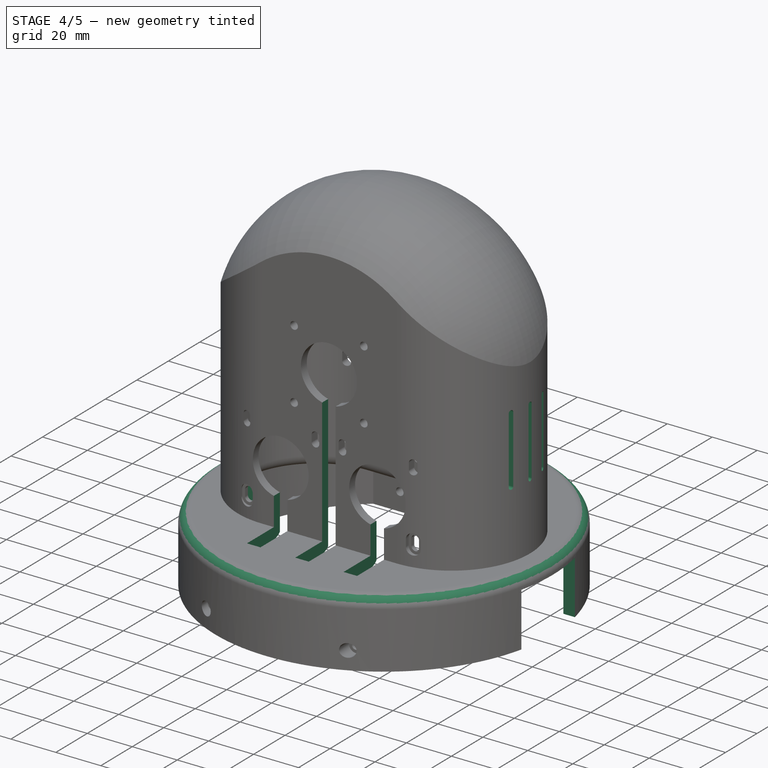
[diagram: stage 4 of 5 — iso view after this stage's code; geometry added in this stage tinted green]
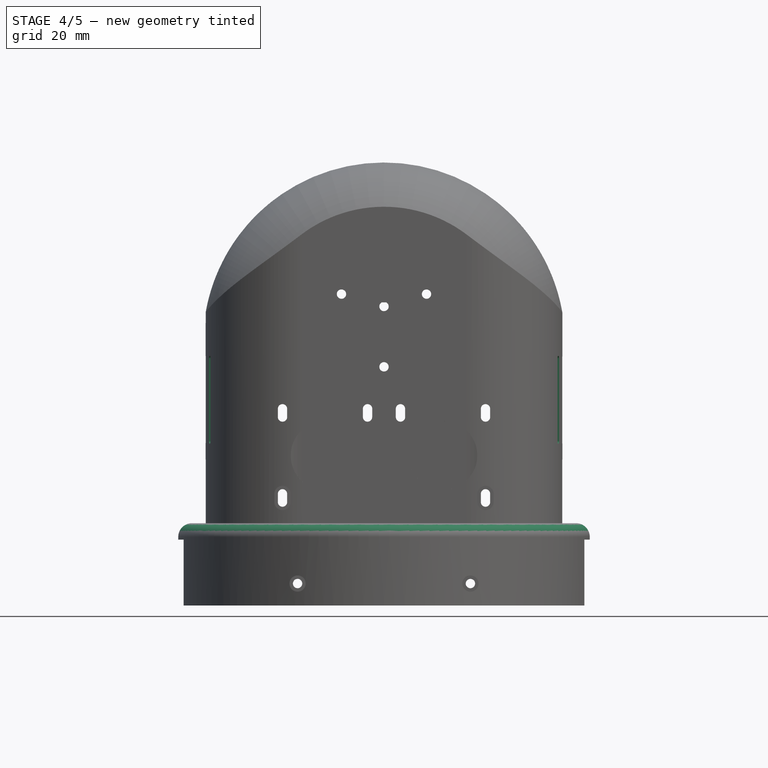
[diagram: stage 4 of 5 — front view after this stage's code; geometry added in this stage tinted green]
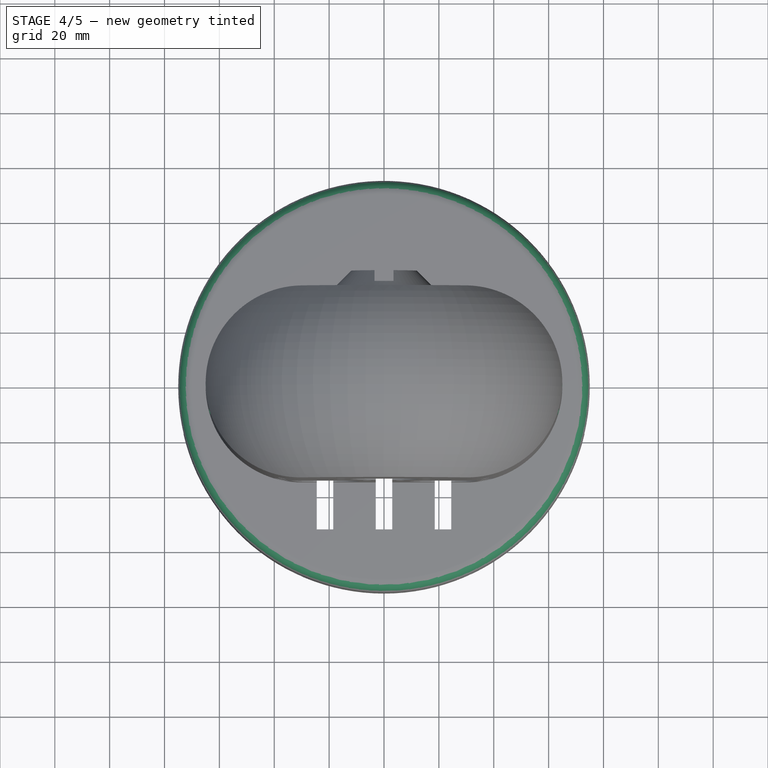
[diagram: stage 4 of 5 — top view after this stage's code; geometry added in this stage tinted green]
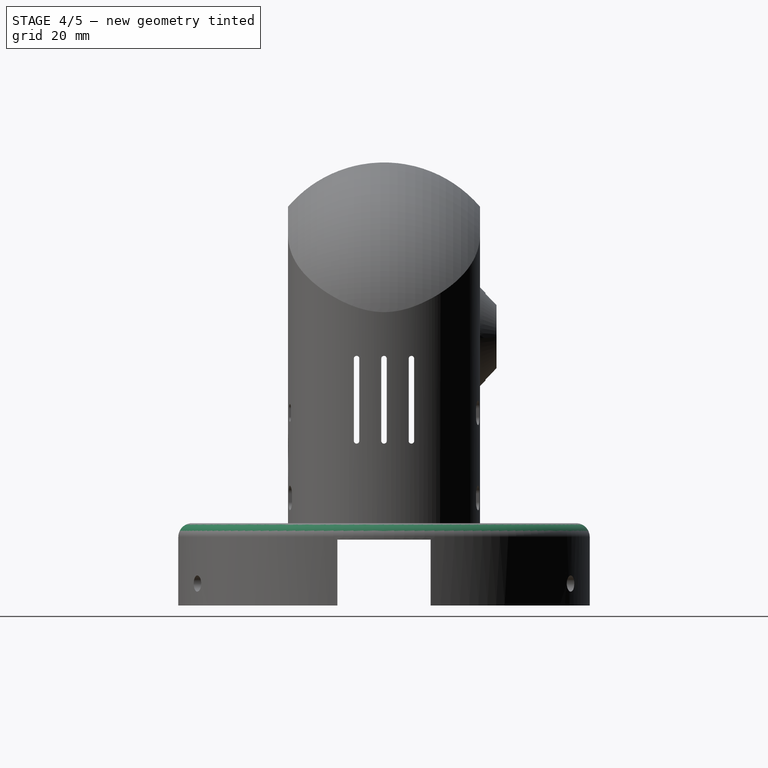
[diagram: stage 4 of 5 — right view after this stage's code; geometry added in this stage tinted green]
FEATURE [Sketcher::SketchObject] Sketch014
  FullyConstrained = true
  MapMode = 5
  Placement = pos=(0,0,0) rot=(1,0,0;1.5708rad)
  Support = -> [XZ_Plane]
  sketch-geometry (8):
    g0: LineSegment StartX=-19.75 StartY=118.5 StartZ=0 EndX=19.75 EndY=118.5 EndZ=0
    g1: LineSegment StartX=19.75 StartY=118.5 StartZ=0 EndX=19.75 EndY=73.5 EndZ=0
    g2: LineSegment StartX=19.75 StartY=73.5 StartZ=0 EndX=41.25 EndY=73.5 EndZ=0
    g3: LineSegment StartX=41.25 StartY=73.5 StartZ=0 EndX=41.25 EndY=0 EndZ=0
    g4: LineSegment StartX=41.25 StartY=0 StartZ=0 EndX=-41.25 EndY=0 EndZ=0
    g5: LineSegment StartX=-41.25 StartY=0 StartZ=0 EndX=-41.25 EndY=73.5 EndZ=0
    g6: LineSegment StartX=-41.25 StartY=73.5 StartZ=0 EndX=-19.75 EndY=73.5 EndZ=0
    g7: LineSegment StartX=-19.75 StartY=73.5 StartZ=0 EndX=-19.75 EndY=118.5 EndZ=0
  constraints (20):
    c: Coincident(g0,g1)
    c: Vertical(g1)
    c: Coincident(g1,g2)
    c: Coincident(g2,g3)
    c: Vertical(g3)
    c: Coincident(g3,g4)
    c: Coincident(g4,g5)
    c: Vertical(g5)
    c: Coincident(g5,g6)
    c: Coincident(g6,g7)
    c: Horizontal(g2)
    c: Coincident(g7,g0)
    c: Symmetric(g0,g0,g-2)
    c: Symmetric(g1,g6,g-2)
    c: Symmetric(g5,g2,g-2)
    c: Tangent(g-1,g4)
    c: DistanceY(g5,g5) = 73.5
    c: DistanceX(g4,g4) = 82.5
    c: DistanceY(g4,g0) = 118.5
    c: DistanceX(g0,g0) = 39.5
FEATURE [PartDesign::Pocket] Pocket009  label="StepperInsideFitting"
  BaseFeature = -> Pocket008
  Length = 31.2
  Length2 = 100
  Profile = -> Sketch014
  Refine = true
  Reversed = true
  Type = 0
FEATURE [Sketcher::SketchObject] Sketch015
  ExternalGeometry = -> [Pocket009]
  FullyConstrained = true
  MapMode = 5
  Placement = pos=(0,0,25) rot=(1,0,0;3.14159rad)
  Support = -> [Pocket009]
  sketch-geometry (4):
    g0: LineSegment StartX=-3 StartY=52.1 StartZ=0 EndX=3 EndY=52.1 EndZ=0
    g1: LineSegment StartX=3 StartY=52.1 StartZ=0 EndX=3 EndY=31.2 EndZ=0
    g2: LineSegment StartX=3 StartY=31.2 StartZ=0 EndX=-3 EndY=31.2 EndZ=0
    g3: LineSegment StartX=-3 StartY=31.2 StartZ=0 EndX=-3 EndY=52.1 EndZ=0
  constraints (11):
    c: Coincident(g0,g1)
    c: Coincident(g1,g2)
    c: Coincident(g2,g3)
    c: Coincident(g3,g0)
    c: Horizontal(g0)
    c: Vertical(g1)
    c: Vertical(g3)
    c: PointOnObject(g1,g-3)
    c: Symmetric(g1,g2,g-2)
    c: DistanceX(g0,g0) = 6
    c: DistanceY(g1,g1) = 20.9
FEATURE [PartDesign::Pocket] Pocket010  label="StepperArt3MotorShaftHole"
  BaseFeature = -> Pocket009
  Length = 65
  Length2 = 100
  Profile = -> Sketch015
  Refine = true
  Type = 0
FEATURE [Sketcher::SketchObject] Sketch016
  ExternalGeometry = -> [Pocket010]
  FullyConstrained = true
  MapMode = 5
  Placement = pos=(0,0,25) rot=(1,0,0;3.14159rad)
  Support = -> [Pocket010]
  sketch-geometry (8):
    g0: LineSegment StartX=18.5 StartY=52.1 StartZ=0 EndX=24.5 EndY=52.1 EndZ=0
    g1: LineSegment StartX=24.5 StartY=52.1 StartZ=0 EndX=24.5 EndY=31.2 EndZ=0
    g2: LineSegment StartX=24.5 StartY=31.2 StartZ=0 EndX=18.5 EndY=31.2 EndZ=0
    g3: LineSegment StartX=18.5 StartY=31.2 StartZ=0 EndX=18.5 EndY=52.1 EndZ=0
    g4: LineSegment StartX=-24.5 StartY=52.1 StartZ=0 EndX=-18.5 EndY=52.1 EndZ=0
    g5: LineSegment StartX=-18.5 StartY=52.1 StartZ=0 EndX=-18.5 EndY=31.2 EndZ=0
    g6: LineSegment StartX=-18.5 StartY=31.2 StartZ=0 EndX=-24.5 EndY=31.2 EndZ=0
    g7: LineSegment StartX=-24.5 StartY=31.2 StartZ=0 EndX=-24.5 EndY=52.1 EndZ=0
  constraints (22):
    c: Coincident(g0,g1)
    c: Coincident(g1,g2)
    c: Coincident(g2,g3)
    c: Coincident(g3,g0)
    c: Horizontal(g0)
    c: Horizontal(g2)
    c: Vertical(g1)
    c: Vertical(g3)
    c: Coincident(g4,g5)
    c: Coincident(g5,g6)
    c: Coincident(g6,g7)
    c: Coincident(g7,g4)
    c: Horizontal(g4)
    c: Horizontal(g6)
    c: Vertical(g7)
    c: Equal(g4,g0)
    c: Symmetric(g0,g4,g-2)
    c: PointOnObject(g2,g-3)
    c: Symmetric(g5,g2,g-2)
    c: DistanceX(g4,g4) = 6
    c: DistanceX(g4,g0) = 37
    c: DistanceY(g5,g5) = 20.9
FEATURE [PartDesign::Pocket] Pocket011  label="StepperArt2MotorShaftHoles"
  BaseFeature = -> Pocket010
  Length = 20
  Length2 = 100
  Profile = -> Sketch016
  Refine = true
  Type = 0
FEATURE [Sketcher::SketchObject] Sketch017
  FullyConstrained = true
  MapMode = 5
  Placement = pos=(0,0,0) rot=(0.57735,0.57735,0.57735;2.0944rad)
  Support = -> [YZ_Plane]
  sketch-geometry (4):
    g0: LineSegment StartX=-17 StartY=0 StartZ=0 EndX=17 EndY=0 EndZ=0
    g1: LineSegment StartX=17 StartY=0 StartZ=0 EndX=17 EndY=24 EndZ=0
    g2: LineSegment StartX=17 StartY=24 StartZ=0 EndX=-17 EndY=24 EndZ=0
    g3: LineSegment StartX=-17 StartY=24 StartZ=0 EndX=-17 EndY=0 EndZ=0
  constraints (11):
    c: Coincident(g0,g1)
    c: Coincident(g1,g2)
    c: Coincident(g2,g3)
    c: Coincident(g3,g0)
    c: Horizontal(g2)
    c: Vertical(g1)
    c: Vertical(g3)
    c: PointOnObject(g0,g-1)
    c: DistanceX(g0,g0) = 34
    c: DistanceY(g1,g1) = 24
    c: Symmetric(g0,g0,g-2)
FEATURE [PartDesign::Pocket] Pocket012  label="BottomVentHoles"
  BaseFeature = -> Pocket011
  Length = 5
  Length2 = 100
  Midplane = true
  Profile = -> Sketch017
  Refine = true
  Type = 1
FEATURE [PartDesign::Fillet] Fillet  label="FilletBase"
  Base = -> Pocket012 [Edge11]
  BaseFeature = -> Pocket012
  Radius = 5
  Refine = true
  SupportTransform = false
FEATURE [Sketcher::SketchObject] Sketch018
  FullyConstrained = true
  MapMode = 5
  Placement = pos=(0,0,0) rot=(0.57735,0.57735,0.57735;2.0944rad)
  Support = -> [YZ_Plane]
  sketch-geometry (13):
    g0: ArcOfCircle CenterX=5.106e-13 CenterY=90 CenterZ=0 NormalX=0 NormalY=0 NormalZ=1 AngleXU=0 Radius=1 StartAngle=-1.69e-14 EndAngle=3.14159
    g1: ArcOfCircle CenterX=1.783e-13 CenterY=60 CenterZ=0 NormalX=0 NormalY=0 NormalZ=1 AngleXU=0 Radius=1 StartAngle=3.14159 EndAngle=6.28319
    g2: LineSegment StartX=-1 StartY=90 StartZ=0 EndX=-1 EndY=60 EndZ=0
    g3: LineSegment StartX=1 StartY=90 StartZ=0 EndX=1 EndY=60 EndZ=0
    g4: ArcOfCircle CenterX=10 CenterY=90 CenterZ=0 NormalX=0 NormalY=0 NormalZ=1 AngleXU=0 Radius=1 StartAngle=7.8e-15 EndAngle=3.14159
    g5: ArcOfCircle CenterX=10 CenterY=60 CenterZ=0 NormalX=0 NormalY=0 NormalZ=1 AngleXU=0 Radius=1 StartAngle=3.14159 EndAngle=6.28319
    g6: LineSegment StartX=9 StartY=90 StartZ=0 EndX=9 EndY=60 EndZ=0
    g7: LineSegment StartX=11 StartY=90 StartZ=0 EndX=11 EndY=60 EndZ=0
    g8: ArcOfCircle CenterX=-10 CenterY=90 CenterZ=0 NormalX=0 NormalY=0 NormalZ=1 AngleXU=0 Radius=1 StartAngle=-1.8e-15 EndAngle=3.14159
    g9: ArcOfCircle CenterX=-10 CenterY=60 CenterZ=0 NormalX=0 NormalY=0 NormalZ=1 AngleXU=0 Radius=1 StartAngle=3.14159 EndAngle=6.28319
    g10: LineSegment StartX=-11 StartY=90 StartZ=0 EndX=-11 EndY=60 EndZ=0
    g11: LineSegment StartX=-9 StartY=90 StartZ=0 EndX=-9 EndY=60 EndZ=0
    g12: LineSegment StartX=-10 StartY=60 StartZ=0 EndX=10 EndY=60 EndZ=0
  constraints (32):
    c: Tangent(g0,g3) = 1.5708
    c: Tangent(g0,g2) = -1.5708
    c: Tangent(g2,g1) = -1.5708
    c: Tangent(g3,g1) = 1.5708
    c: Vertical(g2)
    c: Equal(g0,g1)
    c: DistanceY(g-1,g1) = 60
    c: DistanceY(g3,g3) = 30
    c: Radius(g0) = 1
    c: Tangent(g4,g7) = 1.5708
    c: Tangent(g4,g6) = -1.5708
    c: Tangent(g6,g5) = -1.5708
    c: Tangent(g7,g5) = 1.5708
    c: Vertical(g6)
    c: Equal(g4,g5)
    c: Equal(g3,g7) = 30
    c: Equal(g0,g4) = 2
    c: Tangent(g8,g11) = 1.5708
    c: Tangent(g8,g10) = -1.5708
    c: Tangent(g10,g9) = -1.5708
    c: Tangent(g11,g9) = 1.5708
    c: Vertical(g10)
    c: Equal(g8,g9)
    c: Equal(g3,g11) = 30
    c: Equal(g0,g8) = 2
    c: DistanceX(g0,g4) = 10
    c: DistanceX(g8,g0) = 10
    c: Coincident(g12,g9)
    c: Coincident(g12,g5)
    c: Horizontal(g12)
    c: PointOnObject(g1,g12)
    c: PointOnObject(g1,g-2)
FEATURE [PartDesign::Pocket] Pocket013  label="SideVentSlots"
  BaseFeature = -> Fillet
  Length = 5
  Length2 = 100
  Midplane = true
  Profile = -> Sketch018
  Refine = true
  Type = 1
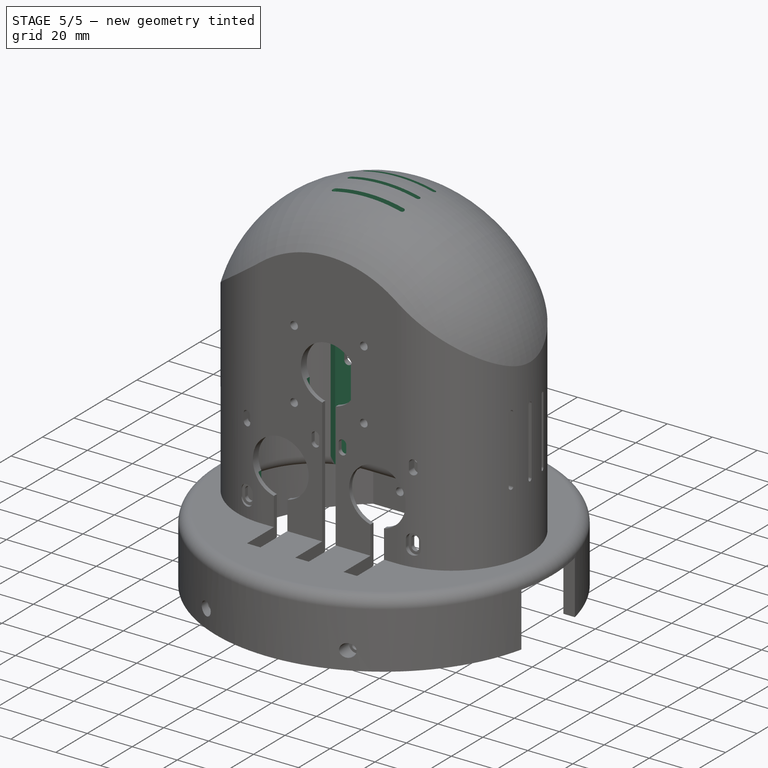
[diagram: stage 5 of 5 — iso view after this stage's code; geometry added in this stage tinted green]
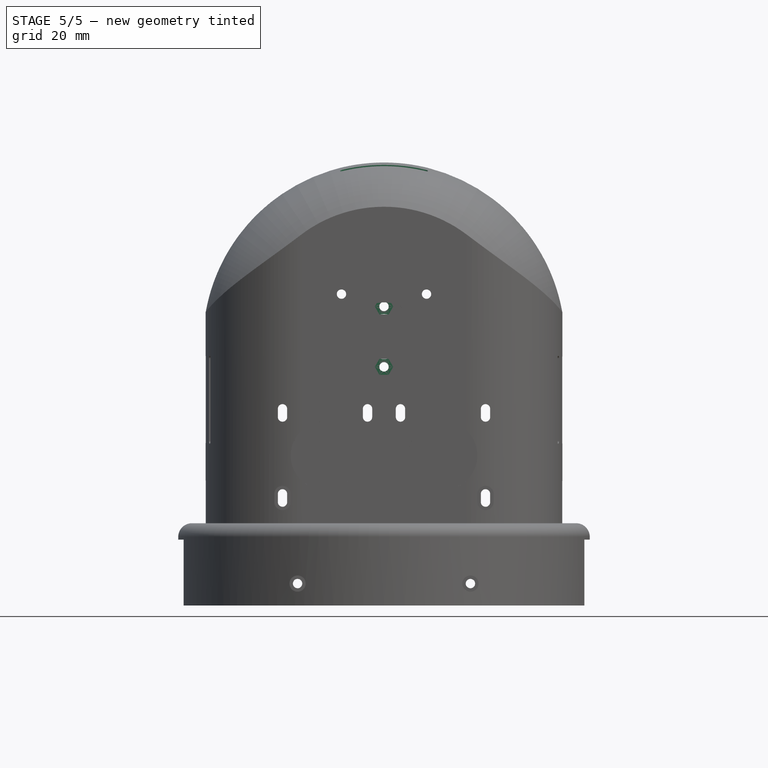
[diagram: stage 5 of 5 — front view after this stage's code; geometry added in this stage tinted green]
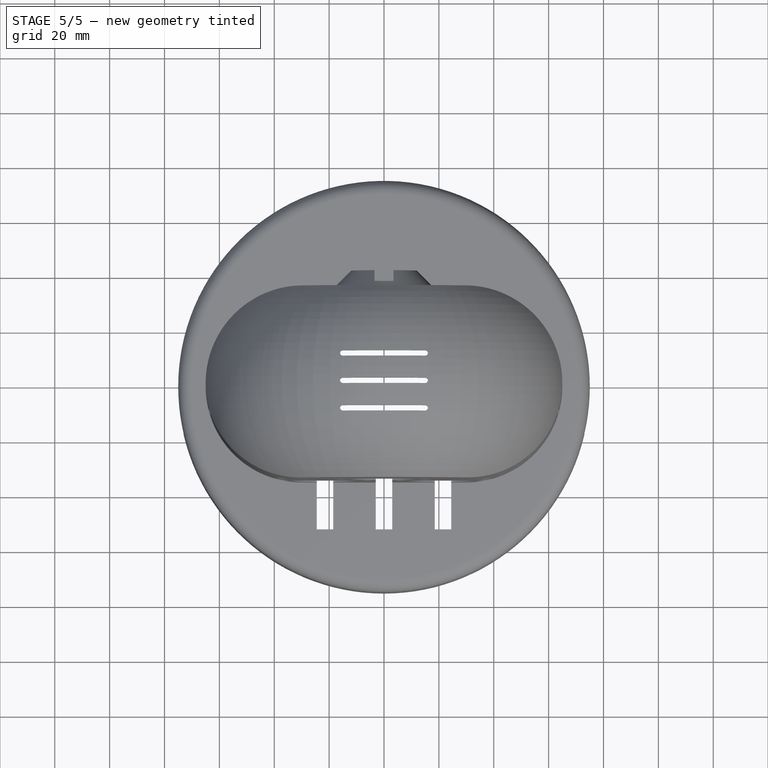
[diagram: stage 5 of 5 — top view after this stage's code; geometry added in this stage tinted green]
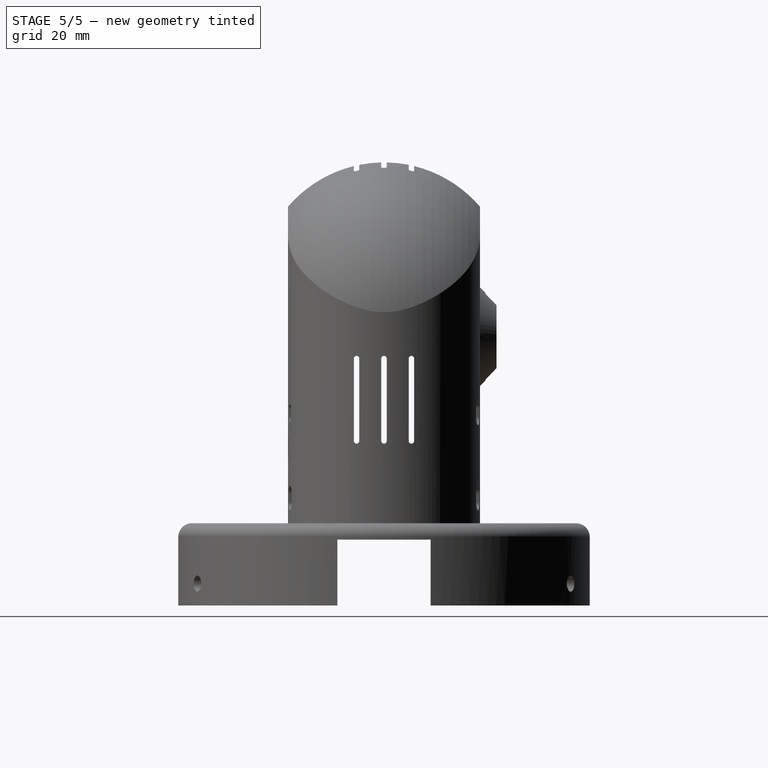
[diagram: stage 5 of 5 — right view after this stage's code; geometry added in this stage tinted green]
FEATURE [Sketcher::SketchObject] Sketch019
  FullyConstrained = true
  MapMode = 5
  Support = -> [XY_Plane]
  sketch-geometry (12):
    g0: ArcOfCircle CenterX=-15 CenterY=0 CenterZ=0 NormalX=0 NormalY=0 NormalZ=1 AngleXU=0 Radius=1 StartAngle=1.5708 EndAngle=4.71239
    g1: ArcOfCircle CenterX=15 CenterY=0 CenterZ=0 NormalX=0 NormalY=0 NormalZ=1 AngleXU=0 Radius=1 StartAngle=4.71239 EndAngle=7.85398
    g2: LineSegment StartX=-15 StartY=-1 StartZ=0 EndX=15 EndY=-1 EndZ=0
    g3: LineSegment StartX=-15 StartY=1 StartZ=0 EndX=15 EndY=1 EndZ=0
    g4: ArcOfCircle CenterX=-15 CenterY=10 CenterZ=0 NormalX=0 NormalY=0 NormalZ=1 AngleXU=0 Radius=1 StartAngle=1.5708 EndAngle=4.71239
    g5: ArcOfCircle CenterX=15 CenterY=10 CenterZ=0 NormalX=0 NormalY=0 NormalZ=1 AngleXU=0 Radius=1 StartAngle=4.71239 EndAngle=7.85398
    g6: LineSegment StartX=-15 StartY=9 StartZ=0 EndX=15 EndY=9 EndZ=0
    g7: LineSegment StartX=-15 StartY=11 StartZ=0 EndX=15 EndY=11 EndZ=0
    g8: ArcOfCircle CenterX=-15 CenterY=-10 CenterZ=0 NormalX=0 NormalY=0 NormalZ=1 AngleXU=0 Radius=1 StartAngle=1.5708 EndAngle=4.71239
    g9: ArcOfCircle CenterX=15 CenterY=-10 CenterZ=0 NormalX=0 NormalY=0 NormalZ=1 AngleXU=0 Radius=1 StartAngle=4.71239 EndAngle=7.85398
    g10: LineSegment StartX=-15 StartY=-11 StartZ=0 EndX=15 EndY=-11 EndZ=0
    g11: LineSegment StartX=-15 StartY=-9 StartZ=0 EndX=15 EndY=-9 EndZ=0
  constraints (27):
    c: Tangent(g0,g3) = 1.5708
    c: Tangent(g0,g2) = -1.5708
    c: Tangent(g2,g1) = -1.5708
    c: Tangent(g3,g1) = 1.5708
    c: Horizontal(g2)
    c: DistanceX(g2,g2) = 30
    c: Radius(g1) = 1
    c: Symmetric(g0,g1,g-2)
    c: Tangent(g4,g7) = 1.5708
    c: Tangent(g4,g6) = -1.5708
    c: Tangent(g6,g5) = -1.5708
    c: Tangent(g7,g5) = 1.5708
    c: Horizontal(g6)
    c: Equal(g2,g6) = 30
    c: Equal(g1,g5) = 1
    c: Tangent(g8,g11) = 1.5708
    c: Tangent(g8,g10) = -1.5708
    c: Tangent(g10,g9) = -1.5708
    c: Tangent(g11,g9) = 1.5708
    c: Horizontal(g10)
    c: Equal(g2,g10) = 30
    c: Equal(g1,g9) = 1
    c: Symmetric(g8,g9,g-2)
    c: Symmetric(g4,g5,g-2)
    c: DistanceY(g0,g4) = 10
    c: DistanceY(g8,g0) = 10
    c: PointOnObject(g1,g-1)
FEATURE [PartDesign::Pocket] Pocket014  label="TopVentSlots"
  BaseFeature = -> Pocket013
  Length = 5
  Length2 = 100
  Profile = -> Sketch019
  Refine = true
  Reversed = true
  Type = 1
FEATURE [PartDesign::CoordinateSystem] LCS_Motor2A
  AttacherType = Attacher::AttachEngine3D
  MapMode = 11
  Placement = pos=(21.5,-31.2,54.7) rot=(0.57735,-0.57735,0.57735;2.0944rad)
  Support = -> [Pocket014]
FEATURE [PartDesign::CoordinateSystem] LCS_Motor2V  label="LCS_Motor2B"
  AttacherType = Attacher::AttachEngine3D
  MapMode = 11
  Placement = pos=(-21.5,-31.2,54.7) rot=(0.57735,-0.57735,0.57735;2.0944rad)
  Support = -> [Pocket014]
FEATURE [PartDesign::CoordinateSystem] LCS_Motor3
  AttacherType = Attacher::AttachEngine3D
  MapMode = 11
  Placement = pos=(0,-31.2,98) rot=(0.57735,-0.57735,0.57735;2.0944rad)
  Support = -> [Pocket014]
FEATURE [PartDesign::CoordinateSystem] LCS_BearingFix
  AttacherType = Attacher::AttachEngine3D
  MapMode = 45
  Placement = pos=(-8e-15,37,98) rot=(-1,0,0;1.5708rad)
  Support = -> [Pocket014]
FEATURE [PartDesign::CoordinateSystem] LCS_Optodisk
  AttacherType = Attacher::AttachEngine3D
  MapMode = 45
  Placement = pos=(-5.5239e-12,35,94.5) rot=(-0.57735,-0.57735,-0.57735;2.0944rad)
  Support = -> [Pocket014]
FEATURE [PartDesign::Line] HoleAxis_1
  AttacherType = Attacher::AttachEngineLine
  Length = 4.79083
  MapMode = 19
  Placement = pos=(-31.5,-63,8) rot=(0,0.707107,0.707107;3.14159rad)
  ResizeMode = 1
  Support = -> [Pocket014]
FEATURE [PartDesign::Line] HoleAxis_2
  AttacherType = Attacher::AttachEngineLine
  Length = 4.79083
  MapMode = 19
  Placement = pos=(31.5,-63,8) rot=(-1,0,0;1.5708rad)
  ResizeMode = 1
  Support = -> [Pocket014]
FEATURE [PartDesign::Line] HoleAxis_3
  AttacherType = Attacher::AttachEngineLine
  Length = 4.79083
  MapMode = 19
  Placement = pos=(31.5,63,8) rot=(1,0,0;1.5708rad)
  ResizeMode = 1
  Support = -> [Pocket014]
FEATURE [PartDesign::Line] HoleAxis_4
  AttacherType = Attacher::AttachEngineLine
  Length = 4.79083
  MapMode = 19
  Placement = pos=(-31.5,63,8) rot=(0,-0.707107,0.707107;3.14159rad)
  ResizeMode = 1
  Support = -> [Pocket014]
FEATURE [PartDesign::CoordinateSystem] LCS_Bot
  AttacherType = Attacher::AttachEngine3D
  MapMode = 45
  Placement = pos=(0,-2.7e-15,8) rot=(0,0,1;0rad)
  Support = -> [Pocket014]
FEATURE [Sketcher::SketchObject] Sketch020
  ExternalGeometry = -> [Pocket014]
  FullyConstrained = true
  MapMode = 5
  Placement = pos=(-5.5125e-12,35,0) rot=(0,0.707107,0.707107;3.14159rad)
  Support = -> [Pocket014]
  sketch-geometry (1):
    g0: Circle CenterX=-5.4946e-12 CenterY=98 CenterZ=0 NormalX=0 NormalY=0 NormalZ=1 AngleXU=0 Radius=8.2
  constraints (2):
    c: Coincident(g0,g-3)
    c: Tangent(g0,g-3)
FEATURE [PartDesign::Pocket] Pocket015
  BaseFeature = -> Pocket014
  Length = 3
  Length2 = 100
  Profile = -> Sketch020
  Refine = true
  Type = 0
FEATURE [PartDesign::CoordinateSystem] LCS_Bearing
  AttacherType = Attacher::AttachEngine3D
  MapMode = 11
  Placement = pos=(4.546e-13,32,98) rot=(-1,0,0;1.5708rad)
  Support = -> [Pocket015]
FEATURE [PartDesign::CoordinateSystem] LCS_Art2BodyCover1
  AttacherType = Attacher::AttachEngine3D
  MapMode = 45
  Placement = pos=(6.7e-15,-35,98) rot=(0,0.707107,0.707107;3.14159rad)
  Support = -> [Pocket015]
FEATURE [PartDesign::Line] HoleAxis_5
  AttacherType = Attacher::AttachEngineLine
  AttachmentOffset = pos=(0,-1.5,0) rot=(0,0,1;0rad)
  Length = 3.79579
  MapMode = 19
  Placement = pos=(37,32,70.2) rot=(0,0.707107,0.707107;3.14159rad)
  ResizeMode = 1
  Support = -> [Pocket015]
FEATURE [PartDesign::Line] HoleAxis_6
  AttacherType = Attacher::AttachEngineLine
  AttachmentOffset = pos=(0,-1.5,0) rot=(0,0,1;0rad)
  Length = 3.79579
  MapMode = 19
  Placement = pos=(6,32,70.2) rot=(0,0.707107,0.707107;3.14159rad)
  ResizeMode = 1
  Support = -> [Pocket015]
FEATURE [PartDesign::Line] HoleAxis_7
  AttacherType = Attacher::AttachEngineLine
  AttachmentOffset = pos=(0,-1.5,0) rot=(0,0,1;0rad)
  Length = 3.79579
  MapMode = 19
  Placement = pos=(-6,32,70.2) rot=(0,0.707107,0.707107;3.14159rad)
  ResizeMode = 1
  Support = -> [Pocket015]
FEATURE [PartDesign::Line] HoleAxis_8
  AttacherType = Attacher::AttachEngineLine
  AttachmentOffset = pos=(0,-1.5,0) rot=(0,0,1;0rad)
  Length = 3.79579
  MapMode = 19
  Placement = pos=(-37,32,70.2) rot=(0,0.707107,0.707107;3.14159rad)
  ResizeMode = 1
  Support = -> [Pocket015]
FEATURE [PartDesign::Line] HoleAxis_9
  AttacherType = Attacher::AttachEngineLine
  AttachmentOffset = pos=(0,-1.5,0) rot=(0,0,1;0rad)
  Length = 3.79579
  MapMode = 19
  Placement = pos=(-37,32,39.2) rot=(0,0.707107,0.707107;3.14159rad)
  ResizeMode = 1
  Support = -> [Pocket015]
FEATURE [PartDesign::Line] HoleAxis_10
  AttacherType = Attacher::AttachEngineLine
  AttachmentOffset = pos=(0,-1.5,0) rot=(0,0,1;0rad)
  Length = 3.79579
  MapMode = 19
  Placement = pos=(-6,32,39.2) rot=(0,0.707107,0.707107;3.14159rad)
  ResizeMode = 1
  Support = -> [Pocket015]
FEATURE [PartDesign::Line] HoleAxis_11
  AttacherType = Attacher::AttachEngineLine
  AttachmentOffset = pos=(0,-1.5,0) rot=(0,0,1;0rad)
  Length = 3.79579
  MapMode = 19
  Placement = pos=(6,32,39.2) rot=(0,0.707107,0.707107;3.14159rad)
  ResizeMode = 1
  Support = -> [Pocket015]
FEATURE [PartDesign::Line] HoleAxis_12
  AttacherType = Attacher::AttachEngineLine
  AttachmentOffset = pos=(0,-1.5,0) rot=(0,0,1;0rad)
  Length = 3.79579
  MapMode = 19
  Placement = pos=(37,32,39.2) rot=(0,0.707107,0.707107;3.14159rad)
  ResizeMode = 1
  Support = -> [Pocket015]
FEATURE [Sketcher::SketchObject] Sketch021
  ExternalGeometry = -> [Pocket015]
  FullyConstrained = true
  MapMode = 5
  Placement = pos=(-4.725e-12,30,0) rot=(1,0,0;1.5708rad)
  Support = -> [Pocket015]
  expr: Constraints[75] = Spreadsheet.M3NutCircumradius
  sketch-geometry (28):
    g0: LineSegment StartX=-23.325 StartY=91.5988 StartZ=0 EndX=-21.65 EndY=94.5 EndZ=0
    g1: LineSegment StartX=-21.65 StartY=94.5 StartZ=0 EndX=-23.325 EndY=97.4012 EndZ=0
    g2: LineSegment StartX=-23.325 StartY=97.4012 StartZ=0 EndX=-26.675 EndY=97.4012 EndZ=0
    g3: LineSegment StartX=-26.675 StartY=97.4012 StartZ=0 EndX=-28.35 EndY=94.5 EndZ=0
    g4: LineSegment StartX=-28.35 StartY=94.5 StartZ=0 EndX=-26.675 EndY=91.5988 EndZ=0
    g5: LineSegment StartX=-26.675 StartY=91.5988 StartZ=0 EndX=-23.325 EndY=91.5988 EndZ=0
    g6: Circle CenterX=-25 CenterY=94.5 CenterZ=0 NormalX=0 NormalY=0 NormalZ=1 AngleXU=0 Radius=3.35
    g7: LineSegment StartX=1.675 StartY=84.0988 StartZ=0 EndX=3.35 EndY=87 EndZ=0
    g8: LineSegment StartX=3.35 StartY=87 StartZ=0 EndX=1.675 EndY=89.9012 EndZ=0
    g9: LineSegment StartX=1.675 StartY=89.9012 StartZ=0 EndX=-1.675 EndY=89.9012 EndZ=0
    g10: LineSegment StartX=-1.675 StartY=89.9012 StartZ=0 EndX=-3.35 EndY=87 EndZ=0
    g11: LineSegment StartX=-3.35 StartY=87 StartZ=0 EndX=-1.675 EndY=84.0988 EndZ=0
    g12: LineSegment StartX=-1.675 StartY=84.0988 StartZ=0 EndX=1.675 EndY=84.0988 EndZ=0
    g13: Circle CenterX=4.725e-12 CenterY=87 CenterZ=0 NormalX=0 NormalY=0 NormalZ=1 AngleXU=0 Radius=3.35
    g14: LineSegment StartX=1.675 StartY=106.099 StartZ=0 EndX=3.35 EndY=109 EndZ=0
    g15: LineSegment StartX=3.35 StartY=109 StartZ=0 EndX=1.675 EndY=111.901 EndZ=0
    g16: LineSegment StartX=1.675 StartY=111.901 StartZ=0 EndX=-1.675 EndY=111.901 EndZ=0
    g17: LineSegment StartX=-1.675 StartY=111.901 StartZ=0 EndX=-3.35 EndY=109 EndZ=0
    g18: LineSegment StartX=-3.35 StartY=109 StartZ=0 EndX=-1.675 EndY=106.099 EndZ=0
    g19: LineSegment StartX=-1.675 StartY=106.099 StartZ=0 EndX=1.675 EndY=106.099 EndZ=0
    g20: Circle CenterX=4.725e-12 CenterY=109 CenterZ=0 NormalX=0 NormalY=0 NormalZ=1 AngleXU=0 Radius=3.35
    g21: LineSegment StartX=23.325 StartY=91.5988 StartZ=0 EndX=26.675 EndY=91.5988 EndZ=0
    g22: LineSegment StartX=26.675 StartY=91.5988 StartZ=0 EndX=28.35 EndY=94.5 EndZ=0
    g23: LineSegment StartX=28.35 StartY=94.5 StartZ=0 EndX=26.675 EndY=97.4012 EndZ=0
    g24: LineSegment StartX=26.675 StartY=97.4012 StartZ=0 EndX=23.325 EndY=97.4012 EndZ=0
    g25: LineSegment StartX=23.325 StartY=97.4012 StartZ=0 EndX=21.65 EndY=94.5 EndZ=0
    g26: LineSegment StartX=21.65 StartY=94.5 StartZ=0 EndX=23.325 EndY=91.5988 EndZ=0
    g27: Circle CenterX=25 CenterY=94.5 CenterZ=0 NormalX=0 NormalY=0 NormalZ=1 AngleXU=0 Radius=3.35
  constraints (64):
    c: Coincident(g0,g1)
    c: Coincident(g1,g2)
    c: Coincident(g2,g3)
    c: Coincident(g3,g4)
    c: Coincident(g4,g5)
    c: Coincident(g5,g0)
    c: Equal(g0, g1-g5) x5
    c: PointOnObject(g0,g6)
    c: PointOnObject(g1,g6)
    c: PointOnObject(g2,g6)
    c: PointOnObject(g3,g6)
    c: PointOnObject(g4,g6)
    c: PointOnObject(g5,g6)
    c: Coincident(g6,g-6)
    c: Coincident(g7,g8)
    c: Coincident(g8,g9)
    c: Coincident(g9,g10)
    c: Coincident(g10,g11)
    c: Coincident(g11,g12)
    c: Coincident(g12,g7)
    c: Equal(g7, g8-g12) x5
    c: PointOnObject(g7,g13)
    c: PointOnObject(g8,g13)
    c: PointOnObject(g9,g13)
    c: PointOnObject(g10,g13)
    c: PointOnObject(g11,g13)
    c: PointOnObject(g12,g13)
    c: Coincident(g13,g-4)
    c: Coincident(g14,g15)
    c: Coincident(g15,g16)
    c: Coincident(g16,g17)
    c: Coincident(g17,g18)
    c: Coincident(g18,g19)
    c: Coincident(g19,g14)
    c: Equal(g14, g15-g19) x5
    c: PointOnObject(g14,g20)
    c: PointOnObject(g15,g20)
    c: PointOnObject(g16,g20)
    c: PointOnObject(g17,g20)
    c: PointOnObject(g18,g20)
    c: PointOnObject(g19,g20)
    c: Coincident(g20,g-5)
    c: Coincident(g21,g22)
    c: Coincident(g22,g23)
    c: Coincident(g23,g24)
    c: Coincident(g24,g25)
    c: Coincident(g25,g26)
    c: Coincident(g26,g21)
    c: Equal(g21, g22-g26) x5
    c: PointOnObject(g21,g27)
    c: PointOnObject(g22,g27)
    c: PointOnObject(g23,g27)
    c: PointOnObject(g24,g27)
    c: PointOnObject(g25,g27)
    c: PointOnObject(g26,g27)
    c: Coincident(g27,g-3)
    c: Equal(g27,g20)
    c: Equal(g20,g13)
    c: Equal(g13,g6)
    c: Radius(g6) = 3.35
    c: Horizontal(g5)
    c: Horizontal(g19)
    c: Horizontal(g12)
    c: Horizontal(g21)
FEATURE [PartDesign::Pocket] Pocket016
  BaseFeature = -> Pocket015
  Length = 3
  Length2 = 100
  Profile = -> Sketch021
  Refine = true
  Type = 0
  expr: Length = Spreadsheet.M3NutThickness
FEATURE [PartDesign::Line] HoleAxis_13
  AttacherType = Attacher::AttachEngineLine
  Length = 4.79083
  MapMode = 19
  Placement = pos=(-25,33,94.5) rot=(0,0.707107,0.707107;3.14159rad)
  ResizeMode = 1
  Support = -> [Pocket016]
FEATURE [PartDesign::Line] HoleAxis_14
  AttacherType = Attacher::AttachEngineLine
  Length = 4.79083
  MapMode = 19
  Placement = pos=(0,33,87) rot=(0,0.707107,0.707107;3.14159rad)
  ResizeMode = 1
  Support = -> [Pocket016]
FEATURE [PartDesign::Line] HoleAxis_15
  AttacherType = Attacher::AttachEngineLine
  Length = 4.79083
  MapMode = 19
  Placement = pos=(0,33,109) rot=(0,0.707107,0.707107;3.14159rad)
  ResizeMode = 1
  Support = -> [Pocket016]
FEATURE [PartDesign::Line] HoleAxis_16
  AttacherType = Attacher::AttachEngineLine
  Length = 4.79083
  MapMode = 19
  Placement = pos=(25,33,94.5) rot=(0,0.707107,0.707107;3.14159rad)
  ResizeMode = 1
  Support = -> [Pocket016]
FEATURE [Sketcher::SketchObject] Sketch022
  ExternalGeometry = -> [Pocket016]
  FullyConstrained = true
  MapMode = 5
  Placement = pos=(0,0,25) rot=(1,0,0;3.14159rad)
  Support = -> [Pocket016]
  sketch-geometry (4):
    g0: LineSegment StartX=-42.75 StartY=-20 StartZ=0 EndX=42.75 EndY=-20 EndZ=0
    g1: LineSegment StartX=42.75 StartY=-20 StartZ=0 EndX=42.75 EndY=-30 EndZ=0
    g2: LineSegment StartX=42.75 StartY=-30 StartZ=0 EndX=-42.75 EndY=-30 EndZ=0
    g3: LineSegment StartX=-42.75 StartY=-30 StartZ=0 EndX=-42.75 EndY=-20 EndZ=0
  constraints (11):
    c: Coincident(g0,g1)
    c: Coincident(g1,g2)
    c: Coincident(g2,g3)
    c: Coincident(g3,g0)
    c: Horizontal(g0)
    c: Vertical(g1)
    c: Vertical(g3)
    c: Symmetric(g2,g1,g-2)
    c: DistanceX(g2,g2) = 85.5
    c: DistanceY(g1,g-3) = 61.2
    c: DistanceY(g1,g1) = 10
FEATURE [PartDesign::Pocket] Pocket017
  BaseFeature = -> Pocket016
  Length = 52.5
  Length2 = 100
  Profile = -> Sketch022
  Refine = true
  Type = 0
FEATURE [Sketcher::SketchObject] Sketch023
  FullyConstrained = true
  MapMode = 5
  Placement = pos=(0,-31.2,-6.9e-15) rot=(0,0.707107,0.707107;3.14159rad)
  Support = -> [Pocket017]
  sketch-geometry (8):
    g0: LineSegment StartX=-32.75 StartY=0 StartZ=0 EndX=-32.75 EndY=55 EndZ=0
    g1: LineSegment StartX=-32.75 StartY=55 StartZ=0 EndX=-11.25 EndY=55 EndZ=0
    g2: LineSegment StartX=-11.25 StartY=55 StartZ=0 EndX=-11.25 EndY=95 EndZ=0
    g3: LineSegment StartX=-11.25 StartY=95 StartZ=0 EndX=11.25 EndY=95 EndZ=0
    g4: LineSegment StartX=11.25 StartY=95 StartZ=0 EndX=11.25 EndY=55 EndZ=0
    g5: LineSegment StartX=11.25 StartY=55 StartZ=0 EndX=32.75 EndY=55 EndZ=0
    g6: LineSegment StartX=32.75 StartY=55 StartZ=0 EndX=32.75 EndY=0 EndZ=0
    g7: LineSegment StartX=32.75 StartY=0 StartZ=0 EndX=-32.75 EndY=0 EndZ=0
  constraints (22):
    c: Vertical(g0)
    c: Coincident(g0,g1)
    c: Coincident(g1,g2)
    c: Coincident(g2,g3)
    c: Coincident(g3,g4)
    c: Vertical(g4)
    c: Coincident(g4,g5)
    c: Horizontal(g5)
    c: Coincident(g5,g6)
    c: Vertical(g6)
    c: Coincident(g6,g7)
    c: Coincident(g7,g0)
    c: Horizontal(g7)
    c: Horizontal(g1)
    c: Vertical(g2)
    c: Symmetric(g2,g3,g-2)
    c: Symmetric(g0,g5,g-2)
    c: DistanceX(g1,g4) = 22.5
    c: DistanceX(g7,g7) = 65.5
    c: PointOnObject(g0,g-1)
    c: DistanceY(g0,g0) = 55
    c: DistanceY(g2,g2) = 40
FEATURE [PartDesign::Pocket] Pocket018
  BaseFeature = -> Pocket017
  Length = 1.9
  Length2 = 100
  Profile = -> Sketch023
  Refine = true
  Type = 0
FEATURE [PartDesign::Body] Body  label="Art1Body"
  Group = -> [Sketch,Pad,Sketch001,Pad001,DatumPlane,Sketch002,Groove,Thickness,Sketch003,Pad002,Sketch004,Pocket,DatumPlane001,Sketch005,Pocket001,MultiTransform,Mirrored,Mirrored001,DatumPlane002,Sketch006,Revolution,Sketch007,Pocket002,Sketch008,Pocket003,Sketch009,Pocket004,Sketch010,Pocket005,Sketch011,Pocket006,Sketch012,Pocket007,Sketch013,Pocket008,Sketch014,Pocket009,Sketch015,Pocket010,Sketch016,+40 more]
  Origin = -> Origin
  Tip = -> Pocket018
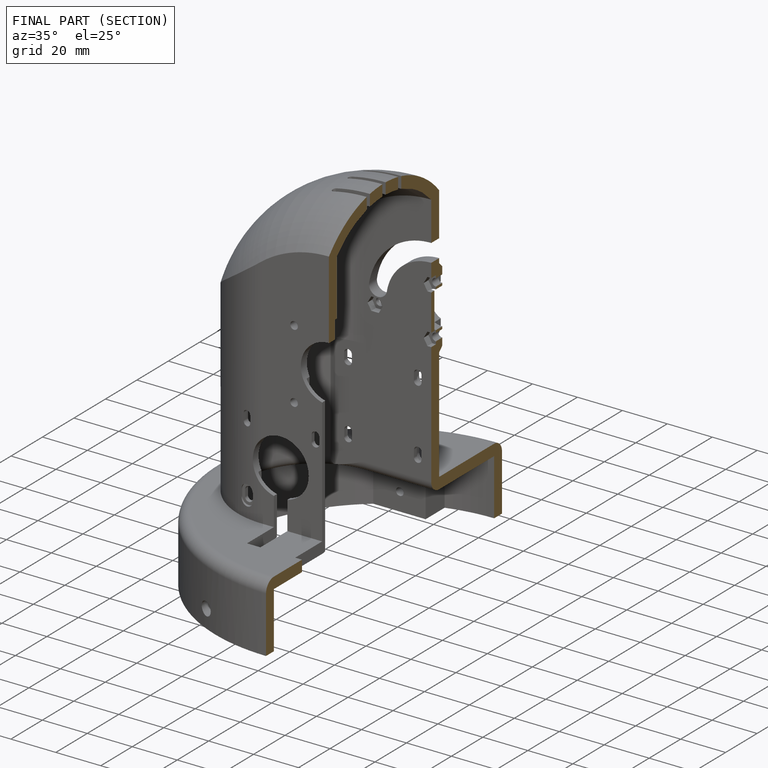
[diagram: finished part — half-section view (interior)]
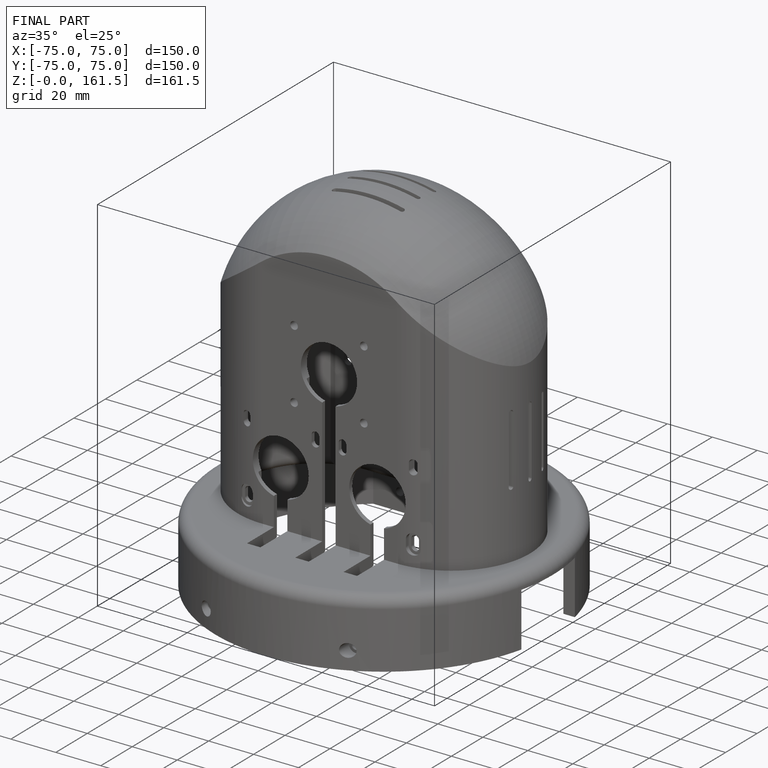
[diagram: finished part — iso view with bounding-box wireframe]
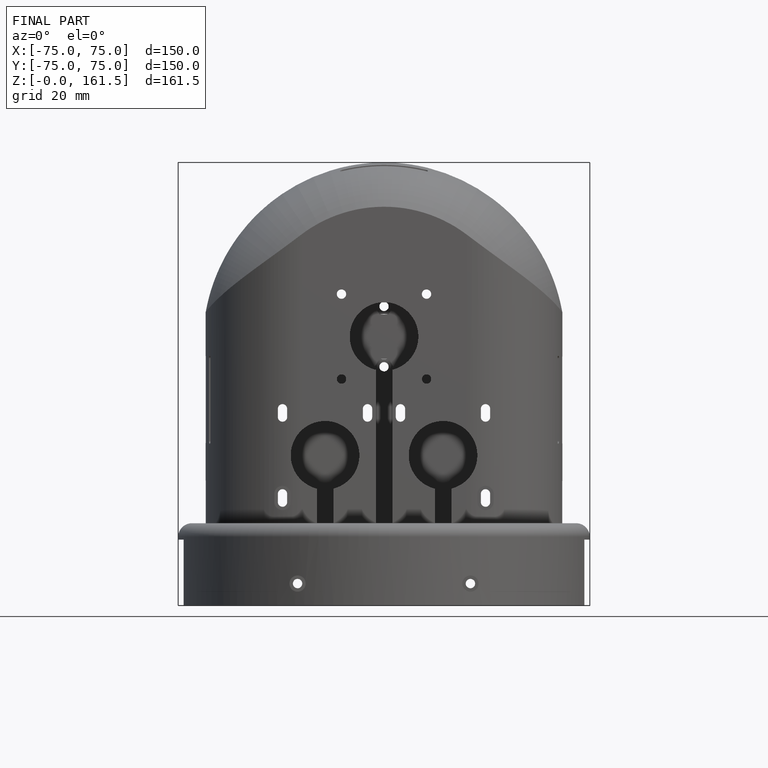
[diagram: finished part — front view with bounding-box wireframe]
